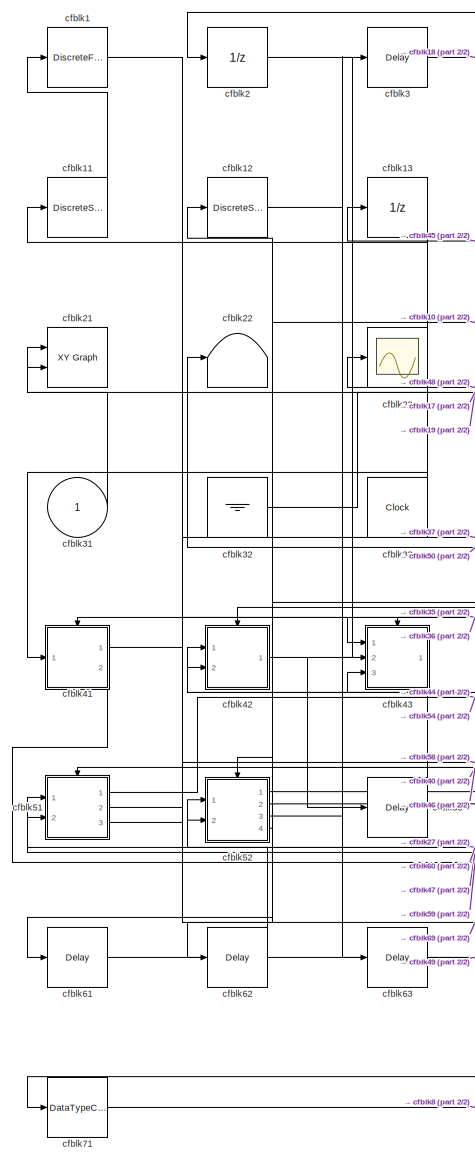
[diagram: root canvas - part 1/2, left side, full height]
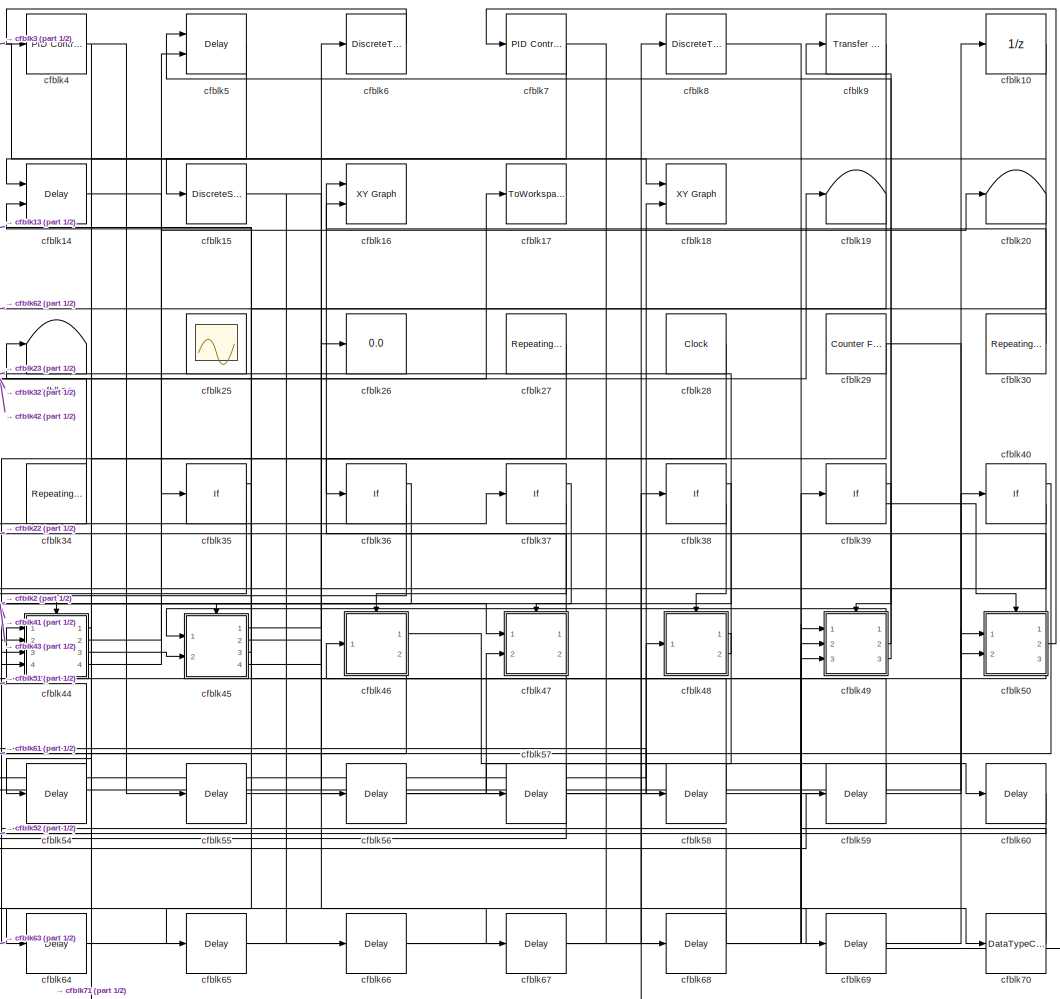
[diagram: root canvas - part 2/2, center side, full height]
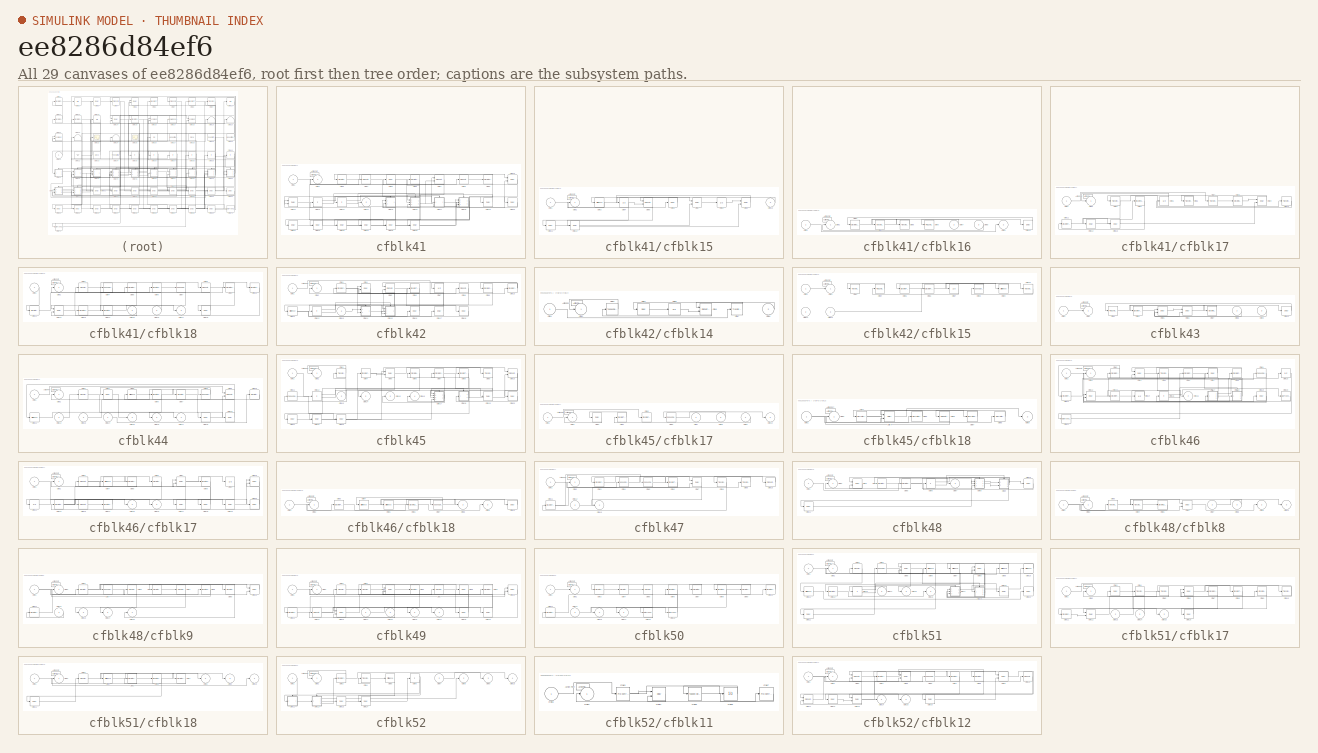
[diagram: thumbnail index - all 29 canvases of the model, root first then tree order]
MODEL slx_ee8286d84ef6
KIND model
CONFIG AbsTol = auto
CONFIG EnableMultiTasking = off
CONFIG FixedStep = auto
CONFIG MaxStep = auto
CONFIG MinStep = auto
CONFIG RelTol = 1e-3
CONFIG SampleTimeConstraint = Unconstrained
CONFIG Solver = VariableStepAuto
CONFIG SolverName = VariableStepAuto
CONFIG StartTime = 0.0
CONFIG StopTime = 10.0
BLOCK [DiscreteFilter] cfblk1
  InputPortMap = u0
  Ports = [1, 1]
  SampleTime = 1
BLOCK [UnitDelay] cfblk10
  InputProcessing = Elements as channels (sample based)
BLOCK [DiscreteStateSpace] cfblk11
BLOCK [DiscreteStateSpace] cfblk12
BLOCK [UnitDelay] cfblk13
  InputProcessing = Elements as channels (sample based)
BLOCK [Delay] cfblk14
  InputPortMap = u0,e6
  Ports = [2, 1]
  SampleTime = 1
  ShowEnablePort = on
BLOCK [DiscreteStateSpace] cfblk15
BLOCK [Reference] cfblk16  REF=simulink/Sinks/XY Graph
  Ports = [2]
  SourceBlock = simulink/Sinks/XY Graph
  SourceProductBaseCode = SL
  SourceProductName = Simulink
  SourceType = XY scope.
BLOCK [ToWorkspace] cfblk17
  FixptAsFi = on
  MaxDataPoints = inf
  Ports = [1]
  SampleTime = -1
  Save2DSignal = 3-D array (concatenate along third dimension)
  SaveFormat = Timeseries
  VariableName = ggrnzxh
BLOCK [Reference] cfblk18  REF=simulink/Sinks/XY Graph
  Ports = [2]
  SourceBlock = simulink/Sinks/XY Graph
  SourceProductBaseCode = SL
  SourceProductName = Simulink
  SourceType = XY scope.
BLOCK [Terminator] cfblk19
BLOCK [UnitDelay] cfblk2
  InputProcessing = Elements as channels (sample based)
BLOCK [Terminator] cfblk20
BLOCK [Reference] cfblk21  REF=simulink/Sinks/XY Graph
  Ports = [2]
  SourceBlock = simulink/Sinks/XY Graph
  SourceProductBaseCode = SL
  SourceProductName = Simulink
  SourceType = XY scope.
BLOCK [Terminator] cfblk22
BLOCK [Scope] cfblk23
  Floating = off
  NumInputPorts = 1
  Ports = [1]
  ScopeSpecificationString = Simulink.scopes.TimeScopeBlockCfg
BLOCK [Terminator] cfblk24
BLOCK [Scope] cfblk25
  Floating = on
  NumInputPorts = 1
  Ports = []
  ScopeSpecificationString = Simulink.scopes.TimeScopeBlockCfg
BLOCK [Display] cfblk26
  Decimation = 1
  Ports = [1]
BLOCK [Reference] cfblk27  REF=simulink/Sources/Repeating
Sequence
Stair
  Ports = [0, 1]
  SourceBlock = simulink/Sources/Repeating\nSequence\nStair
  SourceProductBaseCode = SL
  SourceProductName = Simulink
  SourceType = Repeating Sequence Stair
BLOCK [Clock] cfblk28
BLOCK [Reference] cfblk29  REF=simulink/Sources/Counter
Free-Running
  Ports = [0, 1]
  SourceBlock = simulink/Sources/Counter\nFree-Running
  SourceProductBaseCode = SL
  SourceProductName = Simulink
  SourceType = Counter Free-Running
BLOCK [Delay] cfblk3
  InputPortMap = u0
  Ports = [1, 1]
  SampleTime = 1
BLOCK [Reference] cfblk30  REF=simulink/Sources/Repeating
Sequence
Stair
  Ports = [0, 1]
  SourceBlock = simulink/Sources/Repeating\nSequence\nStair
  SourceProductBaseCode = SL
  SourceProductName = Simulink
  SourceType = Repeating Sequence Stair
BLOCK [Inport] cfblk31
  IconDisplay = Port number
BLOCK [Ground] cfblk32
BLOCK [Clock] cfblk33
BLOCK [Reference] cfblk34  REF=simulink/Sources/Repeating
Sequence
Stair
  Ports = [0, 1]
  SourceBlock = simulink/Sources/Repeating\nSequence\nStair
  SourceProductBaseCode = SL
  SourceProductName = Simulink
  SourceType = Repeating Sequence Stair
BLOCK [If] cfblk35
  Ports = [1, 2]
  SampleTime = 1
BLOCK [If] cfblk36
  Ports = [1, 2]
  SampleTime = 1
BLOCK [If] cfblk37
  Ports = [1, 2]
  SampleTime = 1
BLOCK [If] cfblk38
  Ports = [1, 2]
  SampleTime = 1
BLOCK [If] cfblk39
  Ports = [1, 2]
  SampleTime = 1
BLOCK [Reference] cfblk4  REF=simulink/Continuous/PID Controller
  Ports = [1, 1]
  SourceBlock = simulink/Continuous/PID Controller
  SourceProductBaseCode = SL
  SourceProductName = Simulink
  SourceType = PID 1dof
BLOCK [If] cfblk40
  Ports = [1, 2]
  SampleTime = 1
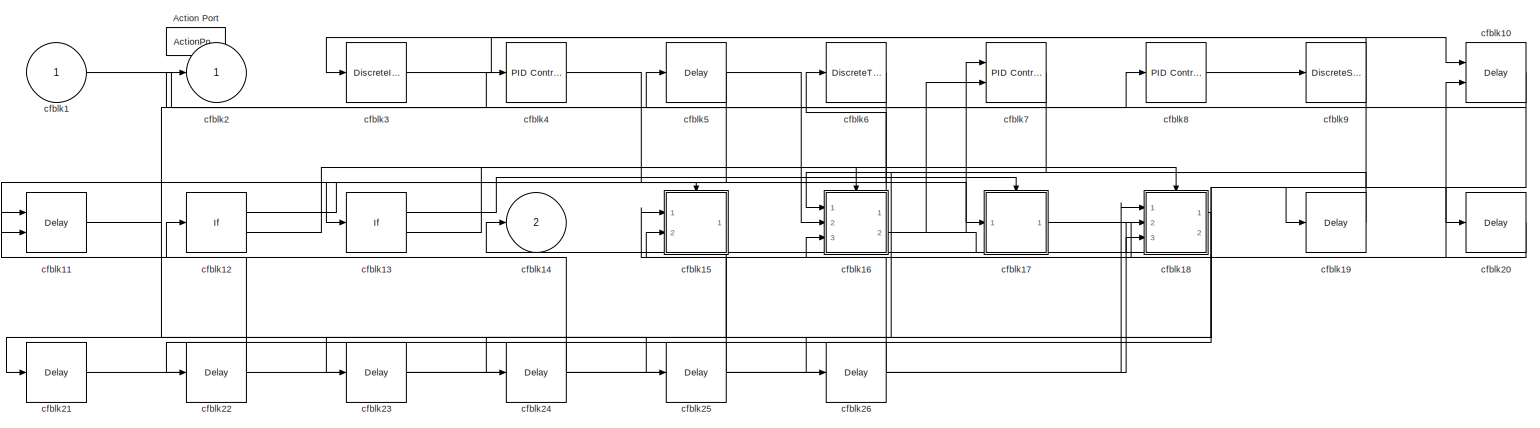
[diagram: cfblk41 - part 1/1, most of the canvas]
BLOCK [SubSystem] cfblk41
  Ports = [1, 2, 0, 0, 0, 0, 0, 1]
  RequestExecContextInheritance = off
  TreatAsAtomicUnit = on
BLOCK [ActionPort] cfblk41/Action Port
  ActionType = then
BLOCK [Inport] cfblk41/cfblk1
  IconDisplay = Port number
BLOCK [Delay] cfblk41/cfblk10
  DelayLengthSource = Input port
  InputPortMap = u0,p1
  Ports = [2, 1]
BLOCK [Delay] cfblk41/cfblk11
  InputPortMap = u0,e6
  Ports = [2, 1]
  ShowEnablePort = on
BLOCK [If] cfblk41/cfblk12
  Ports = [1, 2]
  SampleTime = 1
BLOCK [If] cfblk41/cfblk13
  Ports = [1, 2]
  SampleTime = 1
BLOCK [Outport] cfblk41/cfblk14
  IconDisplay = Port number
  Port = 2
BLOCK [SubSystem] cfblk41/cfblk15
  Ports = [2, 1, 0, 0, 0, 0, 0, 1]
  RequestExecContextInheritance = off
  TreatAsAtomicUnit = on
BLOCK [ActionPort] cfblk41/cfblk15/Action Port
  ActionType = then
BLOCK [Inport] cfblk41/cfblk15/cfblk1
  IconDisplay = Port number
BLOCK [Inport] cfblk41/cfblk15/cfblk10
  IconDisplay = Port number
  Port = 2
BLOCK [Delay] cfblk41/cfblk15/cfblk11
  InputPortMap = u0
  Ports = [1, 1]
BLOCK [Delay] cfblk41/cfblk15/cfblk12
  InputPortMap = u0
  Ports = [1, 1]
BLOCK [Outport] cfblk41/cfblk15/cfblk2
  IconDisplay = Port number
BLOCK [Reference] cfblk41/cfblk15/cfblk3  REF=simulink/Discrete/Difference
  Ports = [1, 1]
  SourceBlock = simulink/Discrete/Difference
  SourceProductBaseCode = SL
  SourceProductName = Simulink
  SourceType = Difference
BLOCK [UnitDelay] cfblk41/cfblk15/cfblk4
  InputProcessing = Elements as channels (sample based)
  SampleTime = -1
BLOCK [Reference] cfblk41/cfblk15/cfblk5  REF=simulink/Continuous/PID Controller (2DOF)
  Ports = [2, 1]
  SourceBlock = simulink/Continuous/PID Controller (2DOF)
  SourceProductBaseCode = SL
  SourceProductName = Simulink
  SourceType = PID 2dof
BLOCK [Delay] cfblk41/cfblk15/cfblk6
  InputPortMap = u0
  Ports = [1, 1]
BLOCK [Delay] cfblk41/cfblk15/cfblk7
  DelayLengthSource = Input port
  InputPortMap = u0,p1
  Ports = [2, 1]
BLOCK [UnitDelay] cfblk41/cfblk15/cfblk8
  InputProcessing = Elements as channels (sample based)
  SampleTime = -1
BLOCK [Delay] cfblk41/cfblk15/cfblk9
  DelayLengthSource = Input port
  InputPortMap = u0,p1
  Ports = [2, 1]
BLOCK [SubSystem] cfblk41/cfblk16
  Ports = [3, 2, 0, 0, 0, 0, 0, 1]
  RequestExecContextInheritance = off
  TreatAsAtomicUnit = on
BLOCK [ActionPort] cfblk41/cfblk16/Action Port
  ActionType = else
BLOCK [Inport] cfblk41/cfblk16/cfblk1
  IconDisplay = Port number
BLOCK [Delay] cfblk41/cfblk16/cfblk10
  InputPortMap = u0
  Ports = [1, 1]
BLOCK [Outport] cfblk41/cfblk16/cfblk2
  IconDisplay = Port number
BLOCK [DiscreteStateSpace] cfblk41/cfblk16/cfblk3
  SampleTime = -1
BLOCK [Reference] cfblk41/cfblk16/cfblk4  REF=simulink/Discrete/Transfer Fcn
Lead or Lag
  Ports = [1, 1]
  SourceBlock = simulink/Discrete/Transfer Fcn\nLead or Lag
  SourceProductBaseCode = SL
  SourceProductName = Simulink
  SourceType = Lead or Lag Compensator
BLOCK [Reference] cfblk41/cfblk16/cfblk5  REF=simulink/Discrete/Transfer Fcn
Lead or Lag
  Ports = [1, 1]
  SourceBlock = simulink/Discrete/Transfer Fcn\nLead or Lag
  SourceProductBaseCode = SL
  SourceProductName = Simulink
  SourceType = Lead or Lag Compensator
BLOCK [Reference] cfblk41/cfblk16/cfblk6  REF=simulink/Continuous/PID Controller
  Ports = [1, 1]
  SourceBlock = simulink/Continuous/PID Controller
  SourceProductBaseCode = SL
  SourceProductName = Simulink
  SourceType = PID 1dof
BLOCK [Inport] cfblk41/cfblk16/cfblk7
  IconDisplay = Port number
  Port = 2
BLOCK [Inport] cfblk41/cfblk16/cfblk8
  IconDisplay = Port number
  Port = 3
BLOCK [Outport] cfblk41/cfblk16/cfblk9
  IconDisplay = Port number
  Port = 2
BLOCK [SubSystem] cfblk41/cfblk17
  Ports = [1, 1, 0, 0, 0, 0, 0, 1]
  RequestExecContextInheritance = off
  TreatAsAtomicUnit = on
BLOCK [ActionPort] cfblk41/cfblk17/Action Port
  ActionType = then
BLOCK [Inport] cfblk41/cfblk17/cfblk1
  IconDisplay = Port number
BLOCK [Reference] cfblk41/cfblk17/cfblk10  REF=simulink/Discrete/Transfer Fcn
Real Zero
  Ports = [1, 1]
  SourceBlock = simulink/Discrete/Transfer Fcn\nReal Zero
  SourceProductBaseCode = SL
  SourceProductName = Simulink
  SourceType = Transfer Fcn Real Zero
BLOCK [DiscreteFir] cfblk41/cfblk17/cfblk11
  InputPortMap = u0
  OutputPortMap = o0
  Ports = [1, 1]
BLOCK [Delay] cfblk41/cfblk17/cfblk12
  InputPortMap = u0
  Ports = [1, 1]
BLOCK [Delay] cfblk41/cfblk17/cfblk13
  InputPortMap = u0
  Ports = [1, 1]
BLOCK [Outport] cfblk41/cfblk17/cfblk2
  IconDisplay = Port number
BLOCK [Reference] cfblk41/cfblk17/cfblk3  REF=simulink/Discrete/Transfer Fcn
Lead or Lag
  Ports = [1, 1]
  SourceBlock = simulink/Discrete/Transfer Fcn\nLead or Lag
  SourceProductBaseCode = SL
  SourceProductName = Simulink
  SourceType = Lead or Lag Compensator
BLOCK [DiscreteStateSpace] cfblk41/cfblk17/cfblk4
  SampleTime = -1
BLOCK [UnitDelay] cfblk41/cfblk17/cfblk5
  InputProcessing = Elements as channels (sample based)
  SampleTime = -1
BLOCK [Reference] cfblk41/cfblk17/cfblk6  REF=simulink/Discrete/Transfer Fcn
First Order
  Ports = [1, 1]
  SourceBlock = simulink/Discrete/Transfer Fcn\nFirst Order
  SourceProductBaseCode = SL
  SourceProductName = Simulink
  SourceType = First Order Transfer Fcn
BLOCK [Reference] cfblk41/cfblk17/cfblk7  REF=simulink/Discrete/Transfer Fcn
Lead or Lag
  Ports = [1, 1]
  SourceBlock = simulink/Discrete/Transfer Fcn\nLead or Lag
  SourceProductBaseCode = SL
  SourceProductName = Simulink
  SourceType = Lead or Lag Compensator
BLOCK [DiscreteIntegrator] cfblk41/cfblk17/cfblk8
  ICPrevOutput = DiscIntNeverNeededParam
  ICPrevScaledInput = DiscIntNeverNeededParam
  InitialConditionSetting = Auto
  Ports = [1, 1]
  SampleTime = -1
BLOCK [Delay] cfblk41/cfblk17/cfblk9
  DelayLengthSource = Input port
  InputPortMap = u0,p1
  Ports = [2, 1]
BLOCK [SubSystem] cfblk41/cfblk18
  Ports = [3, 2, 0, 0, 0, 0, 0, 1]
  RequestExecContextInheritance = off
  TreatAsAtomicUnit = on
BLOCK [ActionPort] cfblk41/cfblk18/Action Port
  ActionType = else
BLOCK [Inport] cfblk41/cfblk18/cfblk1
  IconDisplay = Port number
BLOCK [DiscreteStateSpace] cfblk41/cfblk18/cfblk10
  SampleTime = -1
BLOCK [DiscreteIntegrator] cfblk41/cfblk18/cfblk11
  ICPrevOutput = DiscIntNeverNeededParam
  ICPrevScaledInput = DiscIntNeverNeededParam
  InitialConditionSetting = Auto
  Ports = [1, 1]
  SampleTime = -1
BLOCK [Delay] cfblk41/cfblk18/cfblk12
  DelayLengthSource = Input port
  InputPortMap = u0,p1
  Ports = [2, 1]
BLOCK [DiscreteStateSpace] cfblk41/cfblk18/cfblk13
  SampleTime = -1
BLOCK [DiscreteZeroPole] cfblk41/cfblk18/cfblk14
  Gain = 1
  Poles = [0 0.5]
  SampleTime = -1
BLOCK [Inport] cfblk41/cfblk18/cfblk15
  IconDisplay = Port number
  Port = 2
BLOCK [Inport] cfblk41/cfblk18/cfblk16
  IconDisplay = Port number
  Port = 3
BLOCK [Outport] cfblk41/cfblk18/cfblk17
  IconDisplay = Port number
  Port = 2
BLOCK [Delay] cfblk41/cfblk18/cfblk18
  InputPortMap = u0
  Ports = [1, 1]
BLOCK [Outport] cfblk41/cfblk18/cfblk2
  IconDisplay = Port number
BLOCK [Reference] cfblk41/cfblk18/cfblk3  REF=simulink/Discrete/Transfer Fcn
Lead or Lag
  Ports = [1, 1]
  SourceBlock = simulink/Discrete/Transfer Fcn\nLead or Lag
  SourceProductBaseCode = SL
  SourceProductName = Simulink
  SourceType = Lead or Lag Compensator
BLOCK [Reference] cfblk41/cfblk18/cfblk4  REF=simulink/Discrete/Tapped Delay
  Ports = [1, 1]
  SourceBlock = simulink/Discrete/Tapped Delay
  SourceProductBaseCode = SL
  SourceProductName = Simulink
  SourceType = Tapped Delay Line
BLOCK [DiscreteStateSpace] cfblk41/cfblk18/cfblk5
  SampleTime = -1
BLOCK [DiscreteZeroPole] cfblk41/cfblk18/cfblk6
  Gain = 1
  Poles = [0 0.5]
  SampleTime = -1
BLOCK [Reference] cfblk41/cfblk18/cfblk7  REF=simulink/Discrete/Tapped Delay
  Ports = [1, 1]
  SourceBlock = simulink/Discrete/Tapped Delay
  SourceProductBaseCode = SL
  SourceProductName = Simulink
  SourceType = Tapped Delay Line
BLOCK [Reference] cfblk41/cfblk18/cfblk8  REF=simulink/Continuous/PID Controller
  Ports = [1, 1]
  SourceBlock = simulink/Continuous/PID Controller
  SourceProductBaseCode = SL
  SourceProductName = Simulink
  SourceType = PID 1dof
BLOCK [DiscreteStateSpace] cfblk41/cfblk18/cfblk9
  SampleTime = -1
BLOCK [Delay] cfblk41/cfblk19
  InputPortMap = u0
  Ports = [1, 1]
BLOCK [Outport] cfblk41/cfblk2
  IconDisplay = Port number
BLOCK [Delay] cfblk41/cfblk20
  InputPortMap = u0
  Ports = [1, 1]
BLOCK [Delay] cfblk41/cfblk21
  InputPortMap = u0
  Ports = [1, 1]
BLOCK [Delay] cfblk41/cfblk22
  InputPortMap = u0
  Ports = [1, 1]
BLOCK [Delay] cfblk41/cfblk23
  InputPortMap = u0
  Ports = [1, 1]
BLOCK [Delay] cfblk41/cfblk24
  InputPortMap = u0
  Ports = [1, 1]
BLOCK [Delay] cfblk41/cfblk25
  InputPortMap = u0
  Ports = [1, 1]
BLOCK [Delay] cfblk41/cfblk26
  InputPortMap = u0
  Ports = [1, 1]
BLOCK [DiscreteIntegrator] cfblk41/cfblk3
  ICPrevOutput = DiscIntNeverNeededParam
  ICPrevScaledInput = DiscIntNeverNeededParam
  InitialConditionSetting = Auto
  Ports = [1, 1]
  SampleTime = -1
BLOCK [Reference] cfblk41/cfblk4  REF=simulink/Continuous/PID Controller
  Ports = [1, 1]
  SourceBlock = simulink/Continuous/PID Controller
  SourceProductBaseCode = SL
  SourceProductName = Simulink
  SourceType = PID 1dof
BLOCK [Delay] cfblk41/cfblk5
  InputPortMap = u0
  Ports = [1, 1]
BLOCK [DiscreteTransferFcn] cfblk41/cfblk6
  InputPortMap = u0
  Ports = [1, 1]
BLOCK [Reference] cfblk41/cfblk7  REF=simulink/Continuous/PID Controller (2DOF)
  Ports = [2, 1]
  SourceBlock = simulink/Continuous/PID Controller (2DOF)
  SourceProductBaseCode = SL
  SourceProductName = Simulink
  SourceType = PID 2dof
BLOCK [Reference] cfblk41/cfblk8  REF=simulink/Continuous/PID Controller
  Ports = [1, 1]
  SourceBlock = simulink/Continuous/PID Controller
  SourceProductBaseCode = SL
  SourceProductName = Simulink
  SourceType = PID 1dof
BLOCK [DiscreteStateSpace] cfblk41/cfblk9
  SampleTime = -1
BLOCK [SubSystem] cfblk42
  Ports = [2, 1, 0, 0, 0, 0, 0, 1]
  RequestExecContextInheritance = off
  TreatAsAtomicUnit = on
BLOCK [ActionPort] cfblk42/Action Port
  ActionType = else
BLOCK [Inport] cfblk42/cfblk1
  IconDisplay = Port number
BLOCK [DiscreteFir] cfblk42/cfblk10
  InputPortMap = u0
  OutputPortMap = o0
  Ports = [1, 1]
BLOCK [Reference] cfblk42/cfblk11  REF=simulink/Discrete/Difference
  Ports = [1, 1]
  SourceBlock = simulink/Discrete/Difference
  SourceProductBaseCode = SL
  SourceProductName = Simulink
  SourceType = Difference
BLOCK [If] cfblk42/cfblk12
  Ports = [1, 2]
  SampleTime = 1
BLOCK [Inport] cfblk42/cfblk13
  IconDisplay = Port number
  Port = 2
BLOCK [SubSystem] cfblk42/cfblk14
  Ports = [2, 1, 0, 0, 0, 0, 0, 1]
  RequestExecContextInheritance = off
  TreatAsAtomicUnit = on
BLOCK [ActionPort] cfblk42/cfblk14/Action Port
  ActionType = then
BLOCK [Inport] cfblk42/cfblk14/cfblk1
  IconDisplay = Port number
BLOCK [Outport] cfblk42/cfblk14/cfblk2
  IconDisplay = Port number
BLOCK [Reference] cfblk42/cfblk14/cfblk3  REF=simulink/Discrete/Tapped Delay
  Ports = [1, 1]
  SourceBlock = simulink/Discrete/Tapped Delay
  SourceProductBaseCode = SL
  SourceProductName = Simulink
  SourceType = Tapped Delay Line
BLOCK [Delay] cfblk42/cfblk14/cfblk4
  InputPortMap = u0
  Ports = [1, 1]
BLOCK [UnitDelay] cfblk42/cfblk14/cfblk5
  InputProcessing = Elements as channels (sample based)
  SampleTime = -1
BLOCK [Reference] cfblk42/cfblk14/cfblk6  REF=simulink/Continuous/PID Controller (2DOF)
  Ports = [2, 1]
  SourceBlock = simulink/Continuous/PID Controller (2DOF)
  SourceProductBaseCode = SL
  SourceProductName = Simulink
  SourceType = PID 2dof
BLOCK [Reference] cfblk42/cfblk14/cfblk7  REF=simulink/Discrete/Transfer Fcn
Lead or Lag
  Ports = [1, 1]
  SourceBlock = simulink/Discrete/Transfer Fcn\nLead or Lag
  SourceProductBaseCode = SL
  SourceProductName = Simulink
  SourceType = Lead or Lag Compensator
BLOCK [Inport] cfblk42/cfblk14/cfblk8
  IconDisplay = Port number
  Port = 2
BLOCK [SubSystem] cfblk42/cfblk15
  Ports = [3, 1, 0, 0, 0, 0, 0, 1]
  RequestExecContextInheritance = off
  TreatAsAtomicUnit = on
BLOCK [ActionPort] cfblk42/cfblk15/Action Port
  ActionType = else
BLOCK [Inport] cfblk42/cfblk15/cfblk1
  IconDisplay = Port number
BLOCK [Reference] cfblk42/cfblk15/cfblk10  REF=simulink/Discrete/Transfer Fcn
First Order
  Ports = [1, 1]
  SourceBlock = simulink/Discrete/Transfer Fcn\nFirst Order
  SourceProductBaseCode = SL
  SourceProductName = Simulink
  SourceType = First Order Transfer Fcn
BLOCK [Inport] cfblk42/cfblk15/cfblk11
  IconDisplay = Port number
  Port = 2
BLOCK [Inport] cfblk42/cfblk15/cfblk12
  IconDisplay = Port number
  Port = 3
BLOCK [Outport] cfblk42/cfblk15/cfblk2
  IconDisplay = Port number
BLOCK [Reference] cfblk42/cfblk15/cfblk3  REF=simulink/Discrete/Transfer Fcn
First Order
  Ports = [1, 1]
  SourceBlock = simulink/Discrete/Transfer Fcn\nFirst Order
  SourceProductBaseCode = SL
  SourceProductName = Simulink
  SourceType = First Order Transfer Fcn
BLOCK [Reference] cfblk42/cfblk15/cfblk4  REF=simulink/Continuous/PID Controller
  Ports = [1, 1]
  SourceBlock = simulink/Continuous/PID Controller
  SourceProductBaseCode = SL
  SourceProductName = Simulink
  SourceType = PID 1dof
BLOCK [DiscreteFilter] cfblk42/cfblk15/cfblk5
  InputPortMap = u0
  Ports = [1, 1]
BLOCK [DiscreteFir] cfblk42/cfblk15/cfblk6
  InputPortMap = u0
  OutputPortMap = o0
  Ports = [1, 1]
BLOCK [UnitDelay] cfblk42/cfblk15/cfblk7
  InputProcessing = Elements as channels (sample based)
  SampleTime = -1
BLOCK [Reference] cfblk42/cfblk15/cfblk8  REF=simulink/Discrete/Tapped Delay
  Ports = [1, 1]
  SourceBlock = simulink/Discrete/Tapped Delay
  SourceProductBaseCode = SL
  SourceProductName = Simulink
  SourceType = Tapped Delay Line
BLOCK [Reference] cfblk42/cfblk15/cfblk9  REF=simulink/Discrete/Difference
  Ports = [1, 1]
  SourceBlock = simulink/Discrete/Difference
  SourceProductBaseCode = SL
  SourceProductName = Simulink
  SourceType = Difference
BLOCK [Delay] cfblk42/cfblk16
  InputPortMap = u0
  Ports = [1, 1]
BLOCK [Delay] cfblk42/cfblk17
  InputPortMap = u0
  Ports = [1, 1]
BLOCK [Delay] cfblk42/cfblk18
  InputPortMap = u0
  Ports = [1, 1]
BLOCK [Outport] cfblk42/cfblk2
  IconDisplay = Port number
BLOCK [DiscreteZeroPole] cfblk42/cfblk3
  Gain = 1
  Poles = [0 0.5]
  SampleTime = -1
BLOCK [Delay] cfblk42/cfblk4
  DelayLengthSource = Input port
  InputPortMap = u0,p1
  Ports = [2, 1]
BLOCK [Reference] cfblk42/cfblk5  REF=simulink/Continuous/PID Controller (2DOF)
  Ports = [2, 1]
  SourceBlock = simulink/Continuous/PID Controller (2DOF)
  SourceProductBaseCode = SL
  SourceProductName = Simulink
  SourceType = PID 2dof
BLOCK [DiscreteTransferFcn] cfblk42/cfblk6
  InputPortMap = u0
  Ports = [1, 1]
BLOCK [UnitDelay] cfblk42/cfblk7
  InputProcessing = Elements as channels (sample based)
  SampleTime = -1
BLOCK [Reference] cfblk42/cfblk8  REF=simulink/Continuous/PID Controller
  Ports = [1, 1]
  SourceBlock = simulink/Continuous/PID Controller
  SourceProductBaseCode = SL
  SourceProductName = Simulink
  SourceType = PID 1dof
BLOCK [DiscreteStateSpace] cfblk42/cfblk9
  SampleTime = -1
BLOCK [SubSystem] cfblk43
  Ports = [3, 1, 0, 0, 0, 0, 0, 1]
  RequestExecContextInheritance = off
  TreatAsAtomicUnit = on
BLOCK [ActionPort] cfblk43/Action Port
  ActionType = then
BLOCK [Inport] cfblk43/cfblk1
  IconDisplay = Port number
BLOCK [Delay] cfblk43/cfblk10
  InputPortMap = u0
  Ports = [1, 1]
BLOCK [Outport] cfblk43/cfblk2
  IconDisplay = Port number
BLOCK [Reference] cfblk43/cfblk3  REF=simulink/Continuous/PID Controller
  Ports = [1, 1]
  SourceBlock = simulink/Continuous/PID Controller
  SourceProductBaseCode = SL
  SourceProductName = Simulink
  SourceType = PID 1dof
BLOCK [DiscreteTransferFcn] cfblk43/cfblk4
  InputPortMap = u0
  Ports = [1, 1]
BLOCK [Delay] cfblk43/cfblk5
  InputPortMap = u0,e6
  Ports = [2, 1]
  ShowEnablePort = on
BLOCK [Delay] cfblk43/cfblk6
  InputPortMap = u0,e6
  Ports = [2, 1]
  ShowEnablePort = on
BLOCK [DiscreteIntegrator] cfblk43/cfblk7
  ICPrevOutput = DiscIntNeverNeededParam
  ICPrevScaledInput = DiscIntNeverNeededParam
  InitialConditionSetting = Auto
  Ports = [1, 1]
  SampleTime = -1
BLOCK [Inport] cfblk43/cfblk8
  IconDisplay = Port number
  Port = 2
BLOCK [Inport] cfblk43/cfblk9
  IconDisplay = Port number
  Port = 3
BLOCK [SubSystem] cfblk44
  Ports = [4, 4, 0, 0, 0, 0, 0, 1]
  RequestExecContextInheritance = off
  TreatAsAtomicUnit = on
BLOCK [ActionPort] cfblk44/Action Port
  ActionType = else
BLOCK [Inport] cfblk44/cfblk1
  IconDisplay = Port number
BLOCK [DiscreteIntegrator] cfblk44/cfblk10
  ICPrevOutput = DiscIntNeverNeededParam
  ICPrevScaledInput = DiscIntNeverNeededParam
  InitialConditionSetting = Auto
  Ports = [1, 1]
  SampleTime = -1
BLOCK [Reference] cfblk44/cfblk11  REF=simulink/Discrete/Difference
  Ports = [1, 1]
  SourceBlock = simulink/Discrete/Difference
  SourceProductBaseCode = SL
  SourceProductName = Simulink
  SourceType = Difference
BLOCK [Inport] cfblk44/cfblk12
  IconDisplay = Port number
  Port = 2
BLOCK [Inport] cfblk44/cfblk13
  IconDisplay = Port number
  Port = 3
BLOCK [Inport] cfblk44/cfblk14
  IconDisplay = Port number
  Port = 4
BLOCK [Outport] cfblk44/cfblk15
  IconDisplay = Port number
  Port = 2
BLOCK [Outport] cfblk44/cfblk16
  IconDisplay = Port number
  Port = 3
BLOCK [Outport] cfblk44/cfblk17
  IconDisplay = Port number
  Port = 4
BLOCK [Delay] cfblk44/cfblk18
  InputPortMap = u0
  Ports = [1, 1]
BLOCK [Delay] cfblk44/cfblk19
  InputPortMap = u0
  Ports = [1, 1]
BLOCK [Outport] cfblk44/cfblk2
  IconDisplay = Port number
BLOCK [Reference] cfblk44/cfblk3  REF=simulink/Discrete/Transfer Fcn
First Order
  Ports = [1, 1]
  SourceBlock = simulink/Discrete/Transfer Fcn\nFirst Order
  SourceProductBaseCode = SL
  SourceProductName = Simulink
  SourceType = First Order Transfer Fcn
BLOCK [Delay] cfblk44/cfblk4
  InputPortMap = u0
  Ports = [1, 1]
BLOCK [Reference] cfblk44/cfblk5  REF=simulink/Discrete/Difference
  Ports = [1, 1]
  SourceBlock = simulink/Discrete/Difference
  SourceProductBaseCode = SL
  SourceProductName = Simulink
  SourceType = Difference
BLOCK [DiscreteZeroPole] cfblk44/cfblk6
  Gain = 1
  Poles = [0 0.5]
  SampleTime = -1
BLOCK [DiscreteIntegrator] cfblk44/cfblk7
  ICPrevOutput = DiscIntNeverNeededParam
  ICPrevScaledInput = DiscIntNeverNeededParam
  InitialConditionSetting = Auto
  Ports = [1, 1]
  SampleTime = -1
BLOCK [Reference] cfblk44/cfblk8  REF=simulink/Discrete/Tapped Delay
  Ports = [1, 1]
  SourceBlock = simulink/Discrete/Tapped Delay
  SourceProductBaseCode = SL
  SourceProductName = Simulink
  SourceType = Tapped Delay Line
BLOCK [Reference] cfblk44/cfblk9  REF=simulink/Continuous/PID Controller (2DOF)
  Ports = [2, 1]
  SourceBlock = simulink/Continuous/PID Controller (2DOF)
  SourceProductBaseCode = SL
  SourceProductName = Simulink
  SourceType = PID 2dof
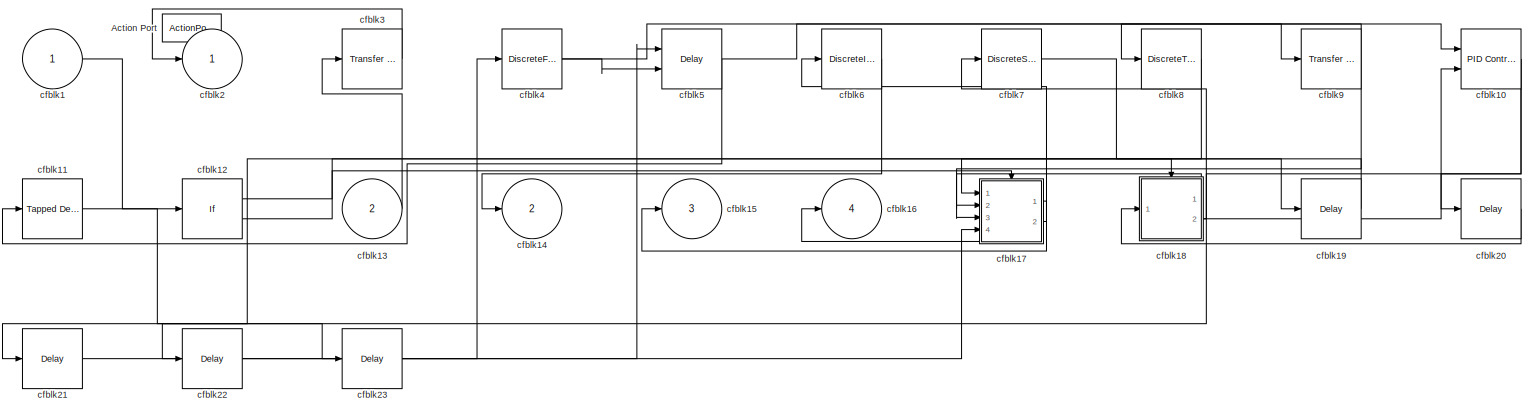
[diagram: cfblk45 - part 1/1, most of the canvas]
BLOCK [SubSystem] cfblk45
  Ports = [2, 4, 0, 0, 0, 0, 0, 1]
  RequestExecContextInheritance = off
  TreatAsAtomicUnit = on
BLOCK [ActionPort] cfblk45/Action Port
  ActionType = then
BLOCK [Inport] cfblk45/cfblk1
  IconDisplay = Port number
BLOCK [Reference] cfblk45/cfblk10  REF=simulink/Continuous/PID Controller (2DOF)
  Ports = [2, 1]
  SourceBlock = simulink/Continuous/PID Controller (2DOF)
  SourceProductBaseCode = SL
  SourceProductName = Simulink
  SourceType = PID 2dof
BLOCK [Reference] cfblk45/cfblk11  REF=simulink/Discrete/Tapped Delay
  Ports = [1, 1]
  SourceBlock = simulink/Discrete/Tapped Delay
  SourceProductBaseCode = SL
  SourceProductName = Simulink
  SourceType = Tapped Delay Line
BLOCK [If] cfblk45/cfblk12
  Ports = [1, 2]
  SampleTime = 1
BLOCK [Inport] cfblk45/cfblk13
  IconDisplay = Port number
  Port = 2
BLOCK [Outport] cfblk45/cfblk14
  IconDisplay = Port number
  Port = 2
BLOCK [Outport] cfblk45/cfblk15
  IconDisplay = Port number
  Port = 3
BLOCK [Outport] cfblk45/cfblk16
  IconDisplay = Port number
  Port = 4
BLOCK [SubSystem] cfblk45/cfblk17
  Ports = [4, 2, 0, 0, 0, 0, 0, 1]
  RequestExecContextInheritance = off
  TreatAsAtomicUnit = on
BLOCK [ActionPort] cfblk45/cfblk17/Action Port
  ActionType = then
BLOCK [Inport] cfblk45/cfblk17/cfblk1
  IconDisplay = Port number
BLOCK [Outport] cfblk45/cfblk17/cfblk10
  IconDisplay = Port number
  Port = 2
BLOCK [Outport] cfblk45/cfblk17/cfblk2
  IconDisplay = Port number
BLOCK [Delay] cfblk45/cfblk17/cfblk3
  InputPortMap = u0
  Ports = [1, 1]
BLOCK [DiscreteTransferFcn] cfblk45/cfblk17/cfblk4
  InputPortMap = u0
  Ports = [1, 1]
BLOCK [DiscreteFilter] cfblk45/cfblk17/cfblk5
  InputPortMap = u0
  Ports = [1, 1]
BLOCK [Reference] cfblk45/cfblk17/cfblk6  REF=simulink/Discrete/Tapped Delay
  Ports = [1, 1]
  SourceBlock = simulink/Discrete/Tapped Delay
  SourceProductBaseCode = SL
  SourceProductName = Simulink
  SourceType = Tapped Delay Line
BLOCK [Inport] cfblk45/cfblk17/cfblk7
  IconDisplay = Port number
  Port = 2
BLOCK [Inport] cfblk45/cfblk17/cfblk8
  IconDisplay = Port number
  Port = 3
BLOCK [Inport] cfblk45/cfblk17/cfblk9
  IconDisplay = Port number
  Port = 4
BLOCK [SubSystem] cfblk45/cfblk18
  Ports = [1, 2, 0, 0, 0, 0, 0, 1]
  RequestExecContextInheritance = off
  TreatAsAtomicUnit = on
BLOCK [ActionPort] cfblk45/cfblk18/Action Port
  ActionType = else
BLOCK [Inport] cfblk45/cfblk18/cfblk1
  IconDisplay = Port number
BLOCK [Outport] cfblk45/cfblk18/cfblk2
  IconDisplay = Port number
BLOCK [DiscreteTransferFcn] cfblk45/cfblk18/cfblk3
  InputPortMap = u0
  Ports = [1, 1]
BLOCK [Delay] cfblk45/cfblk18/cfblk4
  DelayLengthSource = Input port
  InputPortMap = u0,p1
  Ports = [2, 1]
BLOCK [DiscreteFilter] cfblk45/cfblk18/cfblk5
  InputPortMap = u0
  Ports = [1, 1]
BLOCK [Reference] cfblk45/cfblk18/cfblk6  REF=simulink/Continuous/PID Controller
  Ports = [1, 1]
  SourceBlock = simulink/Continuous/PID Controller
  SourceProductBaseCode = SL
  SourceProductName = Simulink
  SourceType = PID 1dof
BLOCK [DiscreteStateSpace] cfblk45/cfblk18/cfblk7
  SampleTime = -1
BLOCK [DiscreteIntegrator] cfblk45/cfblk18/cfblk8
  ICPrevOutput = DiscIntNeverNeededParam
  ICPrevScaledInput = DiscIntNeverNeededParam
  InitialConditionSetting = Auto
  Ports = [1, 1]
  SampleTime = -1
BLOCK [Outport] cfblk45/cfblk18/cfblk9
  IconDisplay = Port number
  Port = 2
BLOCK [Delay] cfblk45/cfblk19
  InputPortMap = u0
  Ports = [1, 1]
BLOCK [Outport] cfblk45/cfblk2
  IconDisplay = Port number
BLOCK [Delay] cfblk45/cfblk20
  InputPortMap = u0
  Ports = [1, 1]
BLOCK [Delay] cfblk45/cfblk21
  InputPortMap = u0
  Ports = [1, 1]
BLOCK [Delay] cfblk45/cfblk22
  InputPortMap = u0
  Ports = [1, 1]
BLOCK [Delay] cfblk45/cfblk23
  InputPortMap = u0
  Ports = [1, 1]
BLOCK [Reference] cfblk45/cfblk3  REF=simulink/Discrete/Transfer Fcn
First Order
  Ports = [1, 1]
  SourceBlock = simulink/Discrete/Transfer Fcn\nFirst Order
  SourceProductBaseCode = SL
  SourceProductName = Simulink
  SourceType = First Order Transfer Fcn
BLOCK [DiscreteFilter] cfblk45/cfblk4
  InputPortMap = u0
  Ports = [1, 1]
BLOCK [Delay] cfblk45/cfblk5
  DelayLengthSource = Input port
  InputPortMap = u0,p1
  Ports = [2, 1]
BLOCK [DiscreteIntegrator] cfblk45/cfblk6
  ICPrevOutput = DiscIntNeverNeededParam
  ICPrevScaledInput = DiscIntNeverNeededParam
  InitialConditionSetting = Auto
  Ports = [1, 1]
  SampleTime = -1
BLOCK [DiscreteStateSpace] cfblk45/cfblk7
  SampleTime = -1
BLOCK [DiscreteTransferFcn] cfblk45/cfblk8
  InputPortMap = u0
  Ports = [1, 1]
BLOCK [Reference] cfblk45/cfblk9  REF=simulink/Discrete/Transfer Fcn
First Order
  Ports = [1, 1]
  SourceBlock = simulink/Discrete/Transfer Fcn\nFirst Order
  SourceProductBaseCode = SL
  SourceProductName = Simulink
  SourceType = First Order Transfer Fcn
BLOCK [SubSystem] cfblk46
  Ports = [1, 2, 0, 0, 0, 0, 0, 1]
  RequestExecContextInheritance = off
  TreatAsAtomicUnit = on
BLOCK [ActionPort] cfblk46/Action Port
  ActionType = else
BLOCK [Inport] cfblk46/cfblk1
  IconDisplay = Port number
BLOCK [UnitDelay] cfblk46/cfblk10
  InputProcessing = Elements as channels (sample based)
  SampleTime = -1
BLOCK [DiscreteFir] cfblk46/cfblk11
  InputPortMap = u0
  OutputPortMap = o0
  Ports = [1, 1]
BLOCK [Delay] cfblk46/cfblk12
  DelayLengthSource = Input port
  InputPortMap = u0,p1
  Ports = [2, 1]
BLOCK [DiscreteFilter] cfblk46/cfblk13
  InputPortMap = u0
  Ports = [1, 1]
BLOCK [UnitDelay] cfblk46/cfblk14
  InputProcessing = Elements as channels (sample based)
  SampleTime = -1
BLOCK [If] cfblk46/cfblk15
  Ports = [1, 2]
  SampleTime = 1
BLOCK [Outport] cfblk46/cfblk16
  IconDisplay = Port number
  Port = 2
BLOCK [SubSystem] cfblk46/cfblk17
  Ports = [1, 3, 0, 0, 0, 0, 0, 1]
  RequestExecContextInheritance = off
  TreatAsAtomicUnit = on
BLOCK [ActionPort] cfblk46/cfblk17/Action Port
  ActionType = then
BLOCK [Inport] cfblk46/cfblk17/cfblk1
  IconDisplay = Port number
BLOCK [Delay] cfblk46/cfblk17/cfblk10
  InputPortMap = u0,e6
  Ports = [2, 1]
  ShowEnablePort = on
BLOCK [UnitDelay] cfblk46/cfblk17/cfblk11
  InputProcessing = Elements as channels (sample based)
  SampleTime = -1
BLOCK [DiscreteFir] cfblk46/cfblk17/cfblk12
  InputPortMap = u0
  OutputPortMap = o0
  Ports = [1, 1]
BLOCK [Reference] cfblk46/cfblk17/cfblk13  REF=simulink/Continuous/PID Controller
  Ports = [1, 1]
  SourceBlock = simulink/Continuous/PID Controller
  SourceProductBaseCode = SL
  SourceProductName = Simulink
  SourceType = PID 1dof
BLOCK [DiscreteFilter] cfblk46/cfblk17/cfblk14
  InputPortMap = u0
  Ports = [1, 1]
BLOCK [Outport] cfblk46/cfblk17/cfblk15
  IconDisplay = Port number
  Port = 2
BLOCK [Outport] cfblk46/cfblk17/cfblk16
  IconDisplay = Port number
  Port = 3
BLOCK [Delay] cfblk46/cfblk17/cfblk17
  InputPortMap = u0
  Ports = [1, 1]
BLOCK [Delay] cfblk46/cfblk17/cfblk18
  InputPortMap = u0
  Ports = [1, 1]
BLOCK [Delay] cfblk46/cfblk17/cfblk19
  InputPortMap = u0
  Ports = [1, 1]
BLOCK [Outport] cfblk46/cfblk17/cfblk2
  IconDisplay = Port number
BLOCK [Delay] cfblk46/cfblk17/cfblk20
  InputPortMap = u0
  Ports = [1, 1]
BLOCK [Reference] cfblk46/cfblk17/cfblk3  REF=simulink/Continuous/PID Controller
  Ports = [1, 1]
  SourceBlock = simulink/Continuous/PID Controller
  SourceProductBaseCode = SL
  SourceProductName = Simulink
  SourceType = PID 1dof
BLOCK [Reference] cfblk46/cfblk17/cfblk4  REF=simulink/Discrete/Difference
  Ports = [1, 1]
  SourceBlock = simulink/Discrete/Difference
  SourceProductBaseCode = SL
  SourceProductName = Simulink
  SourceType = Difference
BLOCK [DiscreteTransferFcn] cfblk46/cfblk17/cfblk5
  InputPortMap = u0
  Ports = [1, 1]
BLOCK [DiscreteIntegrator] cfblk46/cfblk17/cfblk6
  ICPrevOutput = DiscIntNeverNeededParam
  ICPrevScaledInput = DiscIntNeverNeededParam
  InitialConditionSetting = Auto
  Ports = [1, 1]
  SampleTime = -1
BLOCK [Delay] cfblk46/cfblk17/cfblk7
  InputPortMap = u0,e6
  Ports = [2, 1]
  ShowEnablePort = on
BLOCK [DiscreteZeroPole] cfblk46/cfblk17/cfblk8
  Gain = 1
  Poles = [0 0.5]
  SampleTime = -1
BLOCK [UnitDelay] cfblk46/cfblk17/cfblk9
  InputProcessing = Elements as channels (sample based)
  SampleTime = -1
BLOCK [SubSystem] cfblk46/cfblk18
  Ports = [1, 3, 0, 0, 0, 0, 0, 1]
  RequestExecContextInheritance = off
  TreatAsAtomicUnit = on
BLOCK [ActionPort] cfblk46/cfblk18/Action Port
  ActionType = else
BLOCK [Inport] cfblk46/cfblk18/cfblk1
  IconDisplay = Port number
BLOCK [Delay] cfblk46/cfblk18/cfblk10
  InputPortMap = u0
  Ports = [1, 1]
BLOCK [Outport] cfblk46/cfblk18/cfblk2
  IconDisplay = Port number
BLOCK [DiscreteFir] cfblk46/cfblk18/cfblk3
  InputPortMap = u0
  OutputPortMap = o0
  Ports = [1, 1]
BLOCK [Reference] cfblk46/cfblk18/cfblk4  REF=simulink/Discrete/Difference
  Ports = [1, 1]
  SourceBlock = simulink/Discrete/Difference
  SourceProductBaseCode = SL
  SourceProductName = Simulink
  SourceType = Difference
BLOCK [Reference] cfblk46/cfblk18/cfblk5  REF=simulink/Discrete/Difference
  Ports = [1, 1]
  SourceBlock = simulink/Discrete/Difference
  SourceProductBaseCode = SL
  SourceProductName = Simulink
  SourceType = Difference
BLOCK [DiscreteZeroPole] cfblk46/cfblk18/cfblk6
  Gain = 1
  Poles = [0 0.5]
  SampleTime = -1
BLOCK [Reference] cfblk46/cfblk18/cfblk7  REF=simulink/Discrete/Tapped Delay
  Ports = [1, 1]
  SourceBlock = simulink/Discrete/Tapped Delay
  SourceProductBaseCode = SL
  SourceProductName = Simulink
  SourceType = Tapped Delay Line
BLOCK [Outport] cfblk46/cfblk18/cfblk8
  IconDisplay = Port number
  Port = 2
BLOCK [Outport] cfblk46/cfblk18/cfblk9
  IconDisplay = Port number
  Port = 3
BLOCK [Delay] cfblk46/cfblk19
  InputPortMap = u0
  Ports = [1, 1]
BLOCK [Outport] cfblk46/cfblk2
  IconDisplay = Port number
BLOCK [DataTypeConversion] cfblk46/cfblk20
  RndMeth = Floor
  SaturateOnIntegerOverflow = off
BLOCK [DataTypeConversion] cfblk46/cfblk21
  RndMeth = Floor
  SaturateOnIntegerOverflow = off
BLOCK [DiscreteFir] cfblk46/cfblk3
  InputPortMap = u0
  OutputPortMap = o0
  Ports = [1, 1]
BLOCK [Delay] cfblk46/cfblk4
  InputPortMap = u0,e6
  Ports = [2, 1]
  ShowEnablePort = on
BLOCK [Reference] cfblk46/cfblk5  REF=simulink/Discrete/Transfer Fcn
Lead or Lag
  Ports = [1, 1]
  SourceBlock = simulink/Discrete/Transfer Fcn\nLead or Lag
  SourceProductBaseCode = SL
  SourceProductName = Simulink
  SourceType = Lead or Lag Compensator
BLOCK [DiscreteFilter] cfblk46/cfblk6
  InputPortMap = u0
  Ports = [1, 1]
BLOCK [Delay] cfblk46/cfblk7
  InputPortMap = u0
  Ports = [1, 1]
BLOCK [DiscreteFir] cfblk46/cfblk8
  InputPortMap = u0
  OutputPortMap = o0
  Ports = [1, 1]
BLOCK [Reference] cfblk46/cfblk9  REF=simulink/Discrete/Tapped Delay
  Ports = [1, 1]
  SourceBlock = simulink/Discrete/Tapped Delay
  SourceProductBaseCode = SL
  SourceProductName = Simulink
  SourceType = Tapped Delay Line
BLOCK [SubSystem] cfblk47
  Ports = [2, 2, 0, 0, 0, 0, 0, 1]
  RequestExecContextInheritance = off
  TreatAsAtomicUnit = on
BLOCK [ActionPort] cfblk47/Action Port
  ActionType = then
BLOCK [Inport] cfblk47/cfblk1
  IconDisplay = Port number
BLOCK [Reference] cfblk47/cfblk10  REF=simulink/Continuous/PID Controller
  Ports = [1, 1]
  SourceBlock = simulink/Continuous/PID Controller
  SourceProductBaseCode = SL
  SourceProductName = Simulink
  SourceType = PID 1dof
BLOCK [DiscreteFilter] cfblk47/cfblk11
  InputPortMap = u0
  Ports = [1, 1]
BLOCK [Inport] cfblk47/cfblk12
  IconDisplay = Port number
  Port = 2
BLOCK [Outport] cfblk47/cfblk13
  IconDisplay = Port number
  Port = 2
BLOCK [Outport] cfblk47/cfblk2
  IconDisplay = Port number
BLOCK [DiscreteZeroPole] cfblk47/cfblk3
  Gain = 1
  Poles = [0 0.5]
  SampleTime = -1
BLOCK [Reference] cfblk47/cfblk4  REF=simulink/Discrete/Tapped Delay
  Ports = [1, 1]
  SourceBlock = simulink/Discrete/Tapped Delay
  SourceProductBaseCode = SL
  SourceProductName = Simulink
  SourceType = Tapped Delay Line
BLOCK [Reference] cfblk47/cfblk5  REF=simulink/Discrete/Tapped Delay
  Ports = [1, 1]
  SourceBlock = simulink/Discrete/Tapped Delay
  SourceProductBaseCode = SL
  SourceProductName = Simulink
  SourceType = Tapped Delay Line
BLOCK [DiscreteTransferFcn] cfblk47/cfblk6
  InputPortMap = u0
  Ports = [1, 1]
BLOCK [Delay] cfblk47/cfblk7
  DelayLengthSource = Input port
  InputPortMap = u0,p1
  Ports = [2, 1]
BLOCK [Reference] cfblk47/cfblk8  REF=simulink/Discrete/Transfer Fcn
First Order
  Ports = [1, 1]
  SourceBlock = simulink/Discrete/Transfer Fcn\nFirst Order
  SourceProductBaseCode = SL
  SourceProductName = Simulink
  SourceType = First Order Transfer Fcn
BLOCK [Reference] cfblk47/cfblk9  REF=simulink/Discrete/Transfer Fcn
First Order
  Ports = [1, 1]
  SourceBlock = simulink/Discrete/Transfer Fcn\nFirst Order
  SourceProductBaseCode = SL
  SourceProductName = Simulink
  SourceType = First Order Transfer Fcn
BLOCK [SubSystem] cfblk48
  Ports = [1, 2, 0, 0, 0, 0, 0, 1]
  RequestExecContextInheritance = off
  TreatAsAtomicUnit = on
BLOCK [ActionPort] cfblk48/Action Port
  ActionType = else
BLOCK [Inport] cfblk48/cfblk1
  IconDisplay = Port number
BLOCK [Delay] cfblk48/cfblk10
  InputPortMap = u0
  Ports = [1, 1]
BLOCK [Delay] cfblk48/cfblk11
  InputPortMap = u0
  Ports = [1, 1]
BLOCK [Outport] cfblk48/cfblk2
  IconDisplay = Port number
BLOCK [Delay] cfblk48/cfblk3
  InputPortMap = u0,e6
  Ports = [2, 1]
  ShowEnablePort = on
BLOCK [DiscreteTransferFcn] cfblk48/cfblk4
  InputPortMap = u0
  Ports = [1, 1]
BLOCK [DiscreteFir] cfblk48/cfblk5
  InputPortMap = u0
  OutputPortMap = o0
  Ports = [1, 1]
BLOCK [If] cfblk48/cfblk6
  Ports = [1, 2]
  SampleTime = 1
BLOCK [Outport] cfblk48/cfblk7
  IconDisplay = Port number
  Port = 2
BLOCK [SubSystem] cfblk48/cfblk8
  Ports = [3, 3, 0, 0, 0, 0, 0, 1]
  RequestExecContextInheritance = off
  TreatAsAtomicUnit = on
BLOCK [ActionPort] cfblk48/cfblk8/Action Port
  ActionType = then
BLOCK [Inport] cfblk48/cfblk8/cfblk1
  IconDisplay = Port number
BLOCK [Outport] cfblk48/cfblk8/cfblk10
  IconDisplay = Port number
  Port = 3
BLOCK [Outport] cfblk48/cfblk8/cfblk2
  IconDisplay = Port number
BLOCK [Reference] cfblk48/cfblk8/cfblk3  REF=simulink/Discrete/Transfer Fcn
Real Zero
  Ports = [1, 1]
  SourceBlock = simulink/Discrete/Transfer Fcn\nReal Zero
  SourceProductBaseCode = SL
  SourceProductName = Simulink
  SourceType = Transfer Fcn Real Zero
BLOCK [Reference] cfblk48/cfblk8/cfblk4  REF=simulink/Discrete/Transfer Fcn
Real Zero
  Ports = [1, 1]
  SourceBlock = simulink/Discrete/Transfer Fcn\nReal Zero
  SourceProductBaseCode = SL
  SourceProductName = Simulink
  SourceType = Transfer Fcn Real Zero
BLOCK [DiscreteZeroPole] cfblk48/cfblk8/cfblk5
  Gain = 1
  Poles = [0 0.5]
  SampleTime = -1
BLOCK [Delay] cfblk48/cfblk8/cfblk6
  InputPortMap = u0,e6
  Ports = [2, 1]
  ShowEnablePort = on
BLOCK [Inport] cfblk48/cfblk8/cfblk7
  IconDisplay = Port number
  Port = 2
BLOCK [Inport] cfblk48/cfblk8/cfblk8
  IconDisplay = Port number
  Port = 3
BLOCK [Outport] cfblk48/cfblk8/cfblk9
  IconDisplay = Port number
  Port = 2
BLOCK [SubSystem] cfblk48/cfblk9
  Ports = [2, 4, 0, 0, 0, 0, 0, 1]
  RequestExecContextInheritance = off
  TreatAsAtomicUnit = on
BLOCK [ActionPort] cfblk48/cfblk9/Action Port
  ActionType = else
BLOCK [Inport] cfblk48/cfblk9/cfblk1
  IconDisplay = Port number
BLOCK [Delay] cfblk48/cfblk9/cfblk10
  InputPortMap = u0,e6
  Ports = [2, 1]
  ShowEnablePort = on
BLOCK [DiscreteFir] cfblk48/cfblk9/cfblk11
  InputPortMap = u0
  OutputPortMap = o0
  Ports = [1, 1]
BLOCK [Inport] cfblk48/cfblk9/cfblk12
  IconDisplay = Port number
  Port = 2
BLOCK [Outport] cfblk48/cfblk9/cfblk13
  IconDisplay = Port number
  Port = 2
BLOCK [Outport] cfblk48/cfblk9/cfblk14
  IconDisplay = Port number
  Port = 3
BLOCK [Outport] cfblk48/cfblk9/cfblk15
  IconDisplay = Port number
  Port = 4
BLOCK [Outport] cfblk48/cfblk9/cfblk2
  IconDisplay = Port number
BLOCK [DiscreteIntegrator] cfblk48/cfblk9/cfblk3
  ICPrevOutput = DiscIntNeverNeededParam
  ICPrevScaledInput = DiscIntNeverNeededParam
  InitialConditionSetting = Auto
  Ports = [1, 1]
  SampleTime = -1
BLOCK [Reference] cfblk48/cfblk9/cfblk4  REF=simulink/Discrete/Tapped Delay
  Ports = [1, 1]
  SourceBlock = simulink/Discrete/Tapped Delay
  SourceProductBaseCode = SL
  SourceProductName = Simulink
  SourceType = Tapped Delay Line
BLOCK [Reference] cfblk48/cfblk9/cfblk5  REF=simulink/Discrete/Transfer Fcn
Real Zero
  Ports = [1, 1]
  SourceBlock = simulink/Discrete/Transfer Fcn\nReal Zero
  SourceProductBaseCode = SL
  SourceProductName = Simulink
  SourceType = Transfer Fcn Real Zero
BLOCK [DiscreteIntegrator] cfblk48/cfblk9/cfblk6
  ICPrevOutput = DiscIntNeverNeededParam
  ICPrevScaledInput = DiscIntNeverNeededParam
  InitialConditionSetting = Auto
  Ports = [1, 1]
  SampleTime = -1
BLOCK [Reference] cfblk48/cfblk9/cfblk7  REF=simulink/Discrete/Transfer Fcn
First Order
  Ports = [1, 1]
  SourceBlock = simulink/Discrete/Transfer Fcn\nFirst Order
  SourceProductBaseCode = SL
  SourceProductName = Simulink
  SourceType = First Order Transfer Fcn
BLOCK [DiscreteStateSpace] cfblk48/cfblk9/cfblk8
  SampleTime = -1
BLOCK [DiscreteIntegrator] cfblk48/cfblk9/cfblk9
  ICPrevOutput = DiscIntNeverNeededParam
  ICPrevScaledInput = DiscIntNeverNeededParam
  InitialConditionSetting = Auto
  Ports = [1, 1]
  SampleTime = -1
BLOCK [SubSystem] cfblk49
  Ports = [3, 3, 0, 0, 0, 0, 0, 1]
  RequestExecContextInheritance = off
  TreatAsAtomicUnit = on
BLOCK [ActionPort] cfblk49/Action Port
  ActionType = then
BLOCK [Inport] cfblk49/cfblk1
  IconDisplay = Port number
BLOCK [Delay] cfblk49/cfblk10
  InputPortMap = u0,e6
  Ports = [2, 1]
  ShowEnablePort = on
BLOCK [DiscreteStateSpace] cfblk49/cfblk11
  SampleTime = -1
BLOCK [Reference] cfblk49/cfblk12  REF=simulink/Continuous/PID Controller
  Ports = [1, 1]
  SourceBlock = simulink/Continuous/PID Controller
  SourceProductBaseCode = SL
  SourceProductName = Simulink
  SourceType = PID 1dof
BLOCK [Delay] cfblk49/cfblk13
  InputPortMap = u0,e6
  Ports = [2, 1]
  ShowEnablePort = on
BLOCK [Inport] cfblk49/cfblk14
  IconDisplay = Port number
  Port = 2
BLOCK [Inport] cfblk49/cfblk15
  IconDisplay = Port number
  Port = 3
BLOCK [Outport] cfblk49/cfblk16
  IconDisplay = Port number
  Port = 2
BLOCK [Outport] cfblk49/cfblk17
  IconDisplay = Port number
  Port = 3
BLOCK [Delay] cfblk49/cfblk18
  InputPortMap = u0
  Ports = [1, 1]
BLOCK [Delay] cfblk49/cfblk19
  InputPortMap = u0
  Ports = [1, 1]
BLOCK [Outport] cfblk49/cfblk2
  IconDisplay = Port number
BLOCK [Reference] cfblk49/cfblk3  REF=simulink/Discrete/Transfer Fcn
Lead or Lag
  Ports = [1, 1]
  SourceBlock = simulink/Discrete/Transfer Fcn\nLead or Lag
  SourceProductBaseCode = SL
  SourceProductName = Simulink
  SourceType = Lead or Lag Compensator
BLOCK [Reference] cfblk49/cfblk4  REF=simulink/Discrete/Transfer Fcn
Real Zero
  Ports = [1, 1]
  SourceBlock = simulink/Discrete/Transfer Fcn\nReal Zero
  SourceProductBaseCode = SL
  SourceProductName = Simulink
  SourceType = Transfer Fcn Real Zero
BLOCK [Delay] cfblk49/cfblk5
  InputPortMap = u0,e6
  Ports = [2, 1]
  ShowEnablePort = on
BLOCK [DiscreteFir] cfblk49/cfblk6
  InputPortMap = u0
  OutputPortMap = o0
  Ports = [1, 1]
BLOCK [Reference] cfblk49/cfblk7  REF=simulink/Discrete/Transfer Fcn
Lead or Lag
  Ports = [1, 1]
  SourceBlock = simulink/Discrete/Transfer Fcn\nLead or Lag
  SourceProductBaseCode = SL
  SourceProductName = Simulink
  SourceType = Lead or Lag Compensator
BLOCK [Delay] cfblk49/cfblk8
  InputPortMap = u0
  Ports = [1, 1]
BLOCK [DiscreteZeroPole] cfblk49/cfblk9
  Gain = 1
  Poles = [0 0.5]
  SampleTime = -1
BLOCK [Delay] cfblk5
  DelayLengthSource = Input port
  InputPortMap = u0,p1
  Ports = [2, 1]
  SampleTime = 1
BLOCK [SubSystem] cfblk50
  Ports = [2, 3, 0, 0, 0, 0, 0, 1]
  RequestExecContextInheritance = off
  TreatAsAtomicUnit = on
BLOCK [ActionPort] cfblk50/Action Port
  ActionType = else
BLOCK [Inport] cfblk50/cfblk1
  IconDisplay = Port number
BLOCK [DiscreteZeroPole] cfblk50/cfblk10
  Gain = 1
  Poles = [0 0.5]
  SampleTime = -1
BLOCK [DiscreteFilter] cfblk50/cfblk11
  InputPortMap = u0
  Ports = [1, 1]
BLOCK [Inport] cfblk50/cfblk12
  IconDisplay = Port number
  Port = 2
BLOCK [Outport] cfblk50/cfblk13
  IconDisplay = Port number
  Port = 2
BLOCK [Outport] cfblk50/cfblk14
  IconDisplay = Port number
  Port = 3
BLOCK [DataTypeConversion] cfblk50/cfblk15
  RndMeth = Floor
  SaturateOnIntegerOverflow = off
BLOCK [DataTypeConversion] cfblk50/cfblk16
  RndMeth = Floor
  SaturateOnIntegerOverflow = off
BLOCK [Outport] cfblk50/cfblk2
  IconDisplay = Port number
BLOCK [DiscreteTransferFcn] cfblk50/cfblk3
  InputPortMap = u0
  Ports = [1, 1]
BLOCK [DiscreteIntegrator] cfblk50/cfblk4
  ICPrevOutput = DiscIntNeverNeededParam
  ICPrevScaledInput = DiscIntNeverNeededParam
  InitialConditionSetting = Auto
  Ports = [1, 1]
  SampleTime = -1
BLOCK [Reference] cfblk50/cfblk5  REF=simulink/Discrete/Transfer Fcn
Real Zero
  Ports = [1, 1]
  SourceBlock = simulink/Discrete/Transfer Fcn\nReal Zero
  SourceProductBaseCode = SL
  SourceProductName = Simulink
  SourceType = Transfer Fcn Real Zero
BLOCK [DiscreteFilter] cfblk50/cfblk6
  InputPortMap = u0
  Ports = [1, 1]
BLOCK [DiscreteFir] cfblk50/cfblk7
  InputPortMap = u0
  OutputPortMap = o0
  Ports = [1, 1]
BLOCK [DiscreteStateSpace] cfblk50/cfblk8
  SampleTime = -1
BLOCK [DiscreteTransferFcn] cfblk50/cfblk9
  InputPortMap = u0
  Ports = [1, 1]
BLOCK [SubSystem] cfblk51
  Ports = [2, 3, 0, 0, 0, 0, 0, 1]
  RequestExecContextInheritance = off
  TreatAsAtomicUnit = on
BLOCK [ActionPort] cfblk51/Action Port
  ActionType = then
BLOCK [Inport] cfblk51/cfblk1
  IconDisplay = Port number
BLOCK [Reference] cfblk51/cfblk10  REF=simulink/Discrete/Difference
  Ports = [1, 1]
  SourceBlock = simulink/Discrete/Difference
  SourceProductBaseCode = SL
  SourceProductName = Simulink
  SourceType = Difference
BLOCK [Reference] cfblk51/cfblk11  REF=simulink/Discrete/Difference
  Ports = [1, 1]
  SourceBlock = simulink/Discrete/Difference
  SourceProductBaseCode = SL
  SourceProductName = Simulink
  SourceType = Difference
BLOCK [DiscreteStateSpace] cfblk51/cfblk12
  SampleTime = -1
BLOCK [If] cfblk51/cfblk13
  Ports = [1, 2]
  SampleTime = 1
BLOCK [Inport] cfblk51/cfblk14
  IconDisplay = Port number
  Port = 2
BLOCK [Outport] cfblk51/cfblk15
  IconDisplay = Port number
  Port = 2
BLOCK [Outport] cfblk51/cfblk16
  IconDisplay = Port number
  Port = 3
BLOCK [SubSystem] cfblk51/cfblk17
  Ports = [3, 2, 0, 0, 0, 0, 0, 1]
  RequestExecContextInheritance = off
  TreatAsAtomicUnit = on
BLOCK [ActionPort] cfblk51/cfblk17/Action Port
  ActionType = then
BLOCK [Inport] cfblk51/cfblk17/cfblk1
  IconDisplay = Port number
BLOCK [Reference] cfblk51/cfblk17/cfblk10  REF=simulink/Discrete/Transfer Fcn
Real Zero
  Ports = [1, 1]
  SourceBlock = simulink/Discrete/Transfer Fcn\nReal Zero
  SourceProductBaseCode = SL
  SourceProductName = Simulink
  SourceType = Transfer Fcn Real Zero
BLOCK [DiscreteZeroPole] cfblk51/cfblk17/cfblk11
  Gain = 1
  Poles = [0 0.5]
  SampleTime = -1
BLOCK [Delay] cfblk51/cfblk17/cfblk12
  InputPortMap = u0,e6
  Ports = [2, 1]
  ShowEnablePort = on
BLOCK [Inport] cfblk51/cfblk17/cfblk13
  IconDisplay = Port number
  Port = 2
BLOCK [Inport] cfblk51/cfblk17/cfblk14
  IconDisplay = Port number
  Port = 3
BLOCK [Outport] cfblk51/cfblk17/cfblk15
  IconDisplay = Port number
  Port = 2
BLOCK [Delay] cfblk51/cfblk17/cfblk16
  InputPortMap = u0
  Ports = [1, 1]
BLOCK [Outport] cfblk51/cfblk17/cfblk2
  IconDisplay = Port number
BLOCK [Delay] cfblk51/cfblk17/cfblk3
  InputPortMap = u0
  Ports = [1, 1]
BLOCK [Reference] cfblk51/cfblk17/cfblk4  REF=simulink/Discrete/Transfer Fcn
First Order
  Ports = [1, 1]
  SourceBlock = simulink/Discrete/Transfer Fcn\nFirst Order
  SourceProductBaseCode = SL
  SourceProductName = Simulink
  SourceType = First Order Transfer Fcn
BLOCK [Reference] cfblk51/cfblk17/cfblk5  REF=simulink/Discrete/Transfer Fcn
Lead or Lag
  Ports = [1, 1]
  SourceBlock = simulink/Discrete/Transfer Fcn\nLead or Lag
  SourceProductBaseCode = SL
  SourceProductName = Simulink
  SourceType = Lead or Lag Compensator
BLOCK [Delay] cfblk51/cfblk17/cfblk6
  DelayLengthSource = Input port
  InputPortMap = u0,p1
  Ports = [2, 1]
BLOCK [DiscreteStateSpace] cfblk51/cfblk17/cfblk7
  SampleTime = -1
BLOCK [DiscreteTransferFcn] cfblk51/cfblk17/cfblk8
  InputPortMap = u0
  Ports = [1, 1]
BLOCK [DiscreteIntegrator] cfblk51/cfblk17/cfblk9
  ICPrevOutput = DiscIntNeverNeededParam
  ICPrevScaledInput = DiscIntNeverNeededParam
  InitialConditionSetting = Auto
  Ports = [1, 1]
  SampleTime = -1
BLOCK [SubSystem] cfblk51/cfblk18
  Ports = [1, 4, 0, 0, 0, 0, 0, 1]
  RequestExecContextInheritance = off
  TreatAsAtomicUnit = on
BLOCK [ActionPort] cfblk51/cfblk18/Action Port
  ActionType = else
BLOCK [Inport] cfblk51/cfblk18/cfblk1
  IconDisplay = Port number
BLOCK [Outport] cfblk51/cfblk18/cfblk10
  IconDisplay = Port number
  Port = 4
BLOCK [Delay] cfblk51/cfblk18/cfblk11
  InputPortMap = u0
  Ports = [1, 1]
BLOCK [Outport] cfblk51/cfblk18/cfblk2
  IconDisplay = Port number
BLOCK [Reference] cfblk51/cfblk18/cfblk3  REF=simulink/Discrete/Transfer Fcn
First Order
  Ports = [1, 1]
  SourceBlock = simulink/Discrete/Transfer Fcn\nFirst Order
  SourceProductBaseCode = SL
  SourceProductName = Simulink
  SourceType = First Order Transfer Fcn
BLOCK [Reference] cfblk51/cfblk18/cfblk4  REF=simulink/Discrete/Difference
  Ports = [1, 1]
  SourceBlock = simulink/Discrete/Difference
  SourceProductBaseCode = SL
  SourceProductName = Simulink
  SourceType = Difference
BLOCK [DiscreteTransferFcn] cfblk51/cfblk18/cfblk5
  InputPortMap = u0
  Ports = [1, 1]
BLOCK [DiscreteFir] cfblk51/cfblk18/cfblk6
  InputPortMap = u0
  OutputPortMap = o0
  Ports = [1, 1]
BLOCK [DiscreteTransferFcn] cfblk51/cfblk18/cfblk7
  InputPortMap = u0
  Ports = [1, 1]
BLOCK [Outport] cfblk51/cfblk18/cfblk8
  IconDisplay = Port number
  Port = 2
BLOCK [Outport] cfblk51/cfblk18/cfblk9
  IconDisplay = Port number
  Port = 3
BLOCK [Delay] cfblk51/cfblk19
  InputPortMap = u0
  Ports = [1, 1]
BLOCK [Outport] cfblk51/cfblk2
  IconDisplay = Port number
BLOCK [Delay] cfblk51/cfblk20
  InputPortMap = u0
  Ports = [1, 1]
BLOCK [Delay] cfblk51/cfblk21
  InputPortMap = u0
  Ports = [1, 1]
BLOCK [Reference] cfblk51/cfblk3  REF=simulink/Discrete/Transfer Fcn
Lead or Lag
  Ports = [1, 1]
  SourceBlock = simulink/Discrete/Transfer Fcn\nLead or Lag
  SourceProductBaseCode = SL
  SourceProductName = Simulink
  SourceType = Lead or Lag Compensator
BLOCK [Reference] cfblk51/cfblk4  REF=simulink/Discrete/Tapped Delay
  Ports = [1, 1]
  SourceBlock = simulink/Discrete/Tapped Delay
  SourceProductBaseCode = SL
  SourceProductName = Simulink
  SourceType = Tapped Delay Line
BLOCK [Delay] cfblk51/cfblk5
  InputPortMap = u0,e6
  Ports = [2, 1]
  ShowEnablePort = on
BLOCK [Reference] cfblk51/cfblk6  REF=simulink/Discrete/Difference
  Ports = [1, 1]
  SourceBlock = simulink/Discrete/Difference
  SourceProductBaseCode = SL
  SourceProductName = Simulink
  SourceType = Difference
BLOCK [Reference] cfblk51/cfblk7  REF=simulink/Discrete/Difference
  Ports = [1, 1]
  SourceBlock = simulink/Discrete/Difference
  SourceProductBaseCode = SL
  SourceProductName = Simulink
  SourceType = Difference
BLOCK [Delay] cfblk51/cfblk8
  InputPortMap = u0,e6
  Ports = [2, 1]
  ShowEnablePort = on
BLOCK [Reference] cfblk51/cfblk9  REF=simulink/Discrete/Difference
  Ports = [1, 1]
  SourceBlock = simulink/Discrete/Difference
  SourceProductBaseCode = SL
  SourceProductName = Simulink
  SourceType = Difference
BLOCK [SubSystem] cfblk52
  Ports = [2, 4, 0, 0, 0, 0, 0, 1]
  RequestExecContextInheritance = off
  TreatAsAtomicUnit = on
BLOCK [ActionPort] cfblk52/Action Port
  ActionType = else
BLOCK [Inport] cfblk52/cfblk1
  IconDisplay = Port number
BLOCK [Outport] cfblk52/cfblk10
  IconDisplay = Port number
  Port = 4
BLOCK [SubSystem] cfblk52/cfblk11
  Ports = [1, 1, 0, 0, 0, 0, 0, 1]
  RequestExecContextInheritance = off
  TreatAsAtomicUnit = on
BLOCK [ActionPort] cfblk52/cfblk11/Action Port
  ActionType = then
BLOCK [Inport] cfblk52/cfblk11/cfblk1
  IconDisplay = Port number
BLOCK [Outport] cfblk52/cfblk11/cfblk2
  IconDisplay = Port number
BLOCK [Reference] cfblk52/cfblk11/cfblk3  REF=simulink/Continuous/PID Controller
  Ports = [1, 1]
  SourceBlock = simulink/Continuous/PID Controller
  SourceProductBaseCode = SL
  SourceProductName = Simulink
  SourceType = PID 1dof
BLOCK [Delay] cfblk52/cfblk11/cfblk4
  InputPortMap = u0,e6
  Ports = [2, 1]
  ShowEnablePort = on
BLOCK [Reference] cfblk52/cfblk11/cfblk5  REF=simulink/Discrete/Tapped Delay
  Ports = [1, 1]
  SourceBlock = simulink/Discrete/Tapped Delay
  SourceProductBaseCode = SL
  SourceProductName = Simulink
  SourceType = Tapped Delay Line
BLOCK [UnitDelay] cfblk52/cfblk11/cfblk6
  InputProcessing = Elements as channels (sample based)
  SampleTime = -1
BLOCK [Reference] cfblk52/cfblk11/cfblk7  REF=simulink/Continuous/PID Controller
  Ports = [1, 1]
  SourceBlock = simulink/Continuous/PID Controller
  SourceProductBaseCode = SL
  SourceProductName = Simulink
  SourceType = PID 1dof
BLOCK [SubSystem] cfblk52/cfblk12
  Ports = [1, 3, 0, 0, 0, 0, 0, 1]
  RequestExecContextInheritance = off
  TreatAsAtomicUnit = on
BLOCK [ActionPort] cfblk52/cfblk12/Action Port
  ActionType = else
BLOCK [Inport] cfblk52/cfblk12/cfblk1
  IconDisplay = Port number
BLOCK [Reference] cfblk52/cfblk12/cfblk10  REF=simulink/Continuous/PID Controller
  Ports = [1, 1]
  SourceBlock = simulink/Continuous/PID Controller
  SourceProductBaseCode = SL
  SourceProductName = Simulink
  SourceType = PID 1dof
BLOCK [Reference] cfblk52/cfblk12/cfblk11  REF=simulink/Continuous/PID Controller (2DOF)
  Ports = [2, 1]
  SourceBlock = simulink/Continuous/PID Controller (2DOF)
  SourceProductBaseCode = SL
  SourceProductName = Simulink
  SourceType = PID 2dof
BLOCK [Delay] cfblk52/cfblk12/cfblk12
  InputPortMap = u0
  Ports = [1, 1]
BLOCK [Delay] cfblk52/cfblk12/cfblk13
  InputPortMap = u0,e6
  Ports = [2, 1]
  ShowEnablePort = on
BLOCK [Outport] cfblk52/cfblk12/cfblk14
  IconDisplay = Port number
  Port = 2
BLOCK [Outport] cfblk52/cfblk12/cfblk15
  IconDisplay = Port number
  Port = 3
BLOCK [Delay] cfblk52/cfblk12/cfblk16
  InputPortMap = u0
  Ports = [1, 1]
BLOCK [Outport] cfblk52/cfblk12/cfblk2
  IconDisplay = Port number
BLOCK [Reference] cfblk52/cfblk12/cfblk3  REF=simulink/Continuous/PID Controller (2DOF)
  Ports = [2, 1]
  SourceBlock = simulink/Continuous/PID Controller (2DOF)
  SourceProductBaseCode = SL
  SourceProductName = Simulink
  SourceType = PID 2dof
BLOCK [DiscreteTransferFcn] cfblk52/cfblk12/cfblk4
  InputPortMap = u0
  Ports = [1, 1]
BLOCK [Delay] cfblk52/cfblk12/cfblk5
  InputPortMap = u0,e6
  Ports = [2, 1]
  ShowEnablePort = on
BLOCK [Reference] cfblk52/cfblk12/cfblk6  REF=simulink/Discrete/Tapped Delay
  Ports = [1, 1]
  SourceBlock = simulink/Discrete/Tapped Delay
  SourceProductBaseCode = SL
  SourceProductName = Simulink
  SourceType = Tapped Delay Line
BLOCK [DiscreteFir] cfblk52/cfblk12/cfblk7
  InputPortMap = u0
  OutputPortMap = o0
  Ports = [1, 1]
BLOCK [DiscreteFir] cfblk52/cfblk12/cfblk8
  InputPortMap = u0
  OutputPortMap = o0
  Ports = [1, 1]
BLOCK [Delay] cfblk52/cfblk12/cfblk9
  InputPortMap = u0,e6
  Ports = [2, 1]
  ShowEnablePort = on
BLOCK [Delay] cfblk52/cfblk13
  InputPortMap = u0
  Ports = [1, 1]
BLOCK [Delay] cfblk52/cfblk14
  InputPortMap = u0
  Ports = [1, 1]
BLOCK [Outport] cfblk52/cfblk2
  IconDisplay = Port number
BLOCK [DiscreteZeroPole] cfblk52/cfblk3
  Gain = 1
  Poles = [0 0.5]
  SampleTime = -1
BLOCK [Reference] cfblk52/cfblk4  REF=simulink/Discrete/Transfer Fcn
Lead or Lag
  Ports = [1, 1]
  SourceBlock = simulink/Discrete/Transfer Fcn\nLead or Lag
  SourceProductBaseCode = SL
  SourceProductName = Simulink
  SourceType = Lead or Lag Compensator
BLOCK [Reference] cfblk52/cfblk5  REF=simulink/Discrete/Difference
  Ports = [1, 1]
  SourceBlock = simulink/Discrete/Difference
  SourceProductBaseCode = SL
  SourceProductName = Simulink
  SourceType = Difference
BLOCK [If] cfblk52/cfblk6
  Ports = [1, 2]
  SampleTime = 1
BLOCK [Inport] cfblk52/cfblk7
  IconDisplay = Port number
  Port = 2
BLOCK [Outport] cfblk52/cfblk8
  IconDisplay = Port number
  Port = 2
BLOCK [Outport] cfblk52/cfblk9
  IconDisplay = Port number
  Port = 3
BLOCK [Delay] cfblk53
  InputPortMap = u0
  Ports = [1, 1]
  SampleTime = 1
BLOCK [Delay] cfblk54
  InputPortMap = u0
  Ports = [1, 1]
  SampleTime = 1
BLOCK [Delay] cfblk55
  InputPortMap = u0
  Ports = [1, 1]
  SampleTime = 1
BLOCK [Delay] cfblk56
  InputPortMap = u0
  Ports = [1, 1]
  SampleTime = 1
BLOCK [Delay] cfblk57
  InputPortMap = u0
  Ports = [1, 1]
  SampleTime = 1
BLOCK [Delay] cfblk58
  InputPortMap = u0
  Ports = [1, 1]
  SampleTime = 1
BLOCK [Delay] cfblk59
  InputPortMap = u0
  Ports = [1, 1]
  SampleTime = 1
BLOCK [DiscreteTransferFcn] cfblk6
  InputPortMap = u0
  Ports = [1, 1]
  SampleTime = 1
BLOCK [Delay] cfblk60
  InputPortMap = u0
  Ports = [1, 1]
  SampleTime = 1
BLOCK [Delay] cfblk61
  InputPortMap = u0
  Ports = [1, 1]
  SampleTime = 1
BLOCK [Delay] cfblk62
  InputPortMap = u0
  Ports = [1, 1]
  SampleTime = 1
BLOCK [Delay] cfblk63
  InputPortMap = u0
  Ports = [1, 1]
  SampleTime = 1
BLOCK [Delay] cfblk64
  InputPortMap = u0
  Ports = [1, 1]
  SampleTime = 1
BLOCK [Delay] cfblk65
  InputPortMap = u0
  Ports = [1, 1]
  SampleTime = 1
BLOCK [Delay] cfblk66
  InputPortMap = u0
  Ports = [1, 1]
  SampleTime = 1
BLOCK [Delay] cfblk67
  InputPortMap = u0
  Ports = [1, 1]
  SampleTime = 1
BLOCK [Delay] cfblk68
  InputPortMap = u0
  Ports = [1, 1]
  SampleTime = 1
BLOCK [Delay] cfblk69
  InputPortMap = u0
  Ports = [1, 1]
  SampleTime = 1
BLOCK [Reference] cfblk7  REF=simulink/Continuous/PID Controller
  Ports = [1, 1]
  SourceBlock = simulink/Continuous/PID Controller
  SourceProductBaseCode = SL
  SourceProductName = Simulink
  SourceType = PID 1dof
BLOCK [DataTypeConversion] cfblk70
  RndMeth = Floor
  SaturateOnIntegerOverflow = off
BLOCK [DataTypeConversion] cfblk71
  RndMeth = Floor
  SaturateOnIntegerOverflow = off
BLOCK [DiscreteTransferFcn] cfblk8
  InputPortMap = u0
  Ports = [1, 1]
  SampleTime = 1
BLOCK [Reference] cfblk9  REF=simulink/Discrete/Transfer Fcn
Lead or Lag
  Ports = [1, 1]
  SourceBlock = simulink/Discrete/Transfer Fcn\nLead or Lag
  SourceProductBaseCode = SL
  SourceProductName = Simulink
  SourceType = Lead or Lag Compensator
NET cfblk10:1 -> cfblk14:1, cfblk62:1
LINE cfblk11:1 -> cfblk1:1
LINE cfblk12:1 -> cfblk63:1
LINE cfblk13:1 -> cfblk41:1
LINE cfblk14:1 -> cfblk35:1
NET cfblk15:1 -> cfblk66:1, cfblk67:1
LINE cfblk1:1 -> cfblk43:1
LINE cfblk27:1 -> cfblk52:1
LINE cfblk28:1 -> cfblk36:1
NET cfblk29:1 -> cfblk44:4, cfblk50:2
LINE cfblk2:1 -> cfblk47:1
LINE cfblk30:1 -> cfblk16:2
LINE cfblk31:1 -> cfblk21:1
LINE cfblk32:1 -> cfblk17:1
NET cfblk33:1 -> cfblk11:1, cfblk21:2
LINE cfblk34:1 -> cfblk24:1
LINE cfblk35:1 -> cfblk41:ifaction
LINE cfblk35:2 -> cfblk42:ifaction
LINE cfblk36:1 -> cfblk43:ifaction
LINE cfblk36:2 -> cfblk44:ifaction
LINE cfblk37:1 -> cfblk45:ifaction
LINE cfblk37:2 -> cfblk46:ifaction
LINE cfblk38:1 -> cfblk47:ifaction
LINE cfblk38:2 -> cfblk48:ifaction
LINE cfblk39:1 -> cfblk49:ifaction
LINE cfblk39:2 -> cfblk50:ifaction
LINE cfblk3:1 -> cfblk18:1
LINE cfblk40:1 -> cfblk51:ifaction
LINE cfblk40:2 -> cfblk52:ifaction
NET cfblk41/cfblk10:1 -> cfblk41/cfblk19:1, cfblk41/cfblk20:1, cfblk41/cfblk23:1, cfblk41/cfblk2:1
NET cfblk41/cfblk11:1 -> cfblk41/cfblk25:1, cfblk41/cfblk8:1
LINE cfblk41/cfblk12:1 -> cfblk41/cfblk15:ifaction
LINE cfblk41/cfblk12:2 -> cfblk41/cfblk16:ifaction
LINE cfblk41/cfblk13:1 -> cfblk41/cfblk17:ifaction
LINE cfblk41/cfblk13:2 -> cfblk41/cfblk18:ifaction
LINE cfblk41/cfblk15/cfblk10:1 -> cfblk41/cfblk15/cfblk5:1
LINE cfblk41/cfblk15/cfblk11:1 -> cfblk41/cfblk15/cfblk7:2
LINE cfblk41/cfblk15/cfblk12:1 -> cfblk41/cfblk15/cfblk9:2
LINE cfblk41/cfblk15/cfblk1:1 -> cfblk41/cfblk15/cfblk6:1
NET cfblk41/cfblk15/cfblk3:1 -> cfblk41/cfblk15/cfblk2:1, cfblk41/cfblk15/cfblk7:1
NET cfblk41/cfblk15/cfblk4:1 -> cfblk41/cfblk15/cfblk11:1, cfblk41/cfblk15/cfblk5:2
LINE cfblk41/cfblk15/cfblk5:1 -> cfblk41/cfblk15/cfblk12:1
LINE cfblk41/cfblk15/cfblk6:1 -> cfblk41/cfblk15/cfblk3:1
LINE cfblk41/cfblk15/cfblk7:1 -> cfblk41/cfblk15/cfblk8:1
LINE cfblk41/cfblk15/cfblk8:1 -> cfblk41/cfblk15/cfblk9:1
LINE cfblk41/cfblk15/cfblk9:1 -> cfblk41/cfblk15/cfblk4:1
LINE cfblk41/cfblk15:1 -> cfblk41/cfblk21:1
LINE cfblk41/cfblk16/cfblk10:1 -> cfblk41/cfblk16/cfblk3:1
LINE cfblk41/cfblk16/cfblk1:1 -> cfblk41/cfblk16/cfblk9:1
LINE cfblk41/cfblk16/cfblk3:1 -> cfblk41/cfblk16/cfblk5:1
LINE cfblk41/cfblk16/cfblk4:1 -> cfblk41/cfblk16/cfblk10:1
LINE cfblk41/cfblk16/cfblk5:1 -> cfblk41/cfblk16/cfblk4:1
LINE cfblk41/cfblk16/cfblk7:1 -> cfblk41/cfblk16/cfblk6:1
LINE cfblk41/cfblk16/cfblk8:1 -> cfblk41/cfblk16/cfblk2:1
LINE cfblk41/cfblk16:1 -> cfblk41/cfblk6:1
NET cfblk41/cfblk16:2 -> cfblk41/cfblk18:2, cfblk41/cfblk7:1, cfblk41/cfblk7:2
LINE cfblk41/cfblk17/cfblk10:1 -> cfblk41/cfblk17/cfblk5:1
LINE cfblk41/cfblk17/cfblk11:1 -> cfblk41/cfblk17/cfblk13:1
LINE cfblk41/cfblk17/cfblk12:1 -> cfblk41/cfblk17/cfblk9:2
LINE cfblk41/cfblk17/cfblk13:1 -> cfblk41/cfblk17/cfblk4:1
LINE cfblk41/cfblk17/cfblk1:1 -> cfblk41/cfblk17/cfblk7:1
NET cfblk41/cfblk17/cfblk3:1 -> cfblk41/cfblk17/cfblk10:1, cfblk41/cfblk17/cfblk12:1
LINE cfblk41/cfblk17/cfblk4:1 -> cfblk41/cfblk17/cfblk11:1
LINE cfblk41/cfblk17/cfblk5:1 -> cfblk41/cfblk17/cfblk2:1
LINE cfblk41/cfblk17/cfblk6:1 -> cfblk41/cfblk17/cfblk3:1
LINE cfblk41/cfblk17/cfblk7:1 -> cfblk41/cfblk17/cfblk8:1
LINE cfblk41/cfblk17/cfblk8:1 -> cfblk41/cfblk17/cfblk9:1
LINE cfblk41/cfblk17/cfblk9:1 -> cfblk41/cfblk17/cfblk6:1
LINE cfblk41/cfblk17:1 -> cfblk41/cfblk10:2
LINE cfblk41/cfblk18/cfblk10:1 -> cfblk41/cfblk18/cfblk13:1
LINE cfblk41/cfblk18/cfblk11:1 -> cfblk41/cfblk18/cfblk5:1
LINE cfblk41/cfblk18/cfblk12:1 -> cfblk41/cfblk18/cfblk6:1
LINE cfblk41/cfblk18/cfblk13:1 -> cfblk41/cfblk18/cfblk9:1
LINE cfblk41/cfblk18/cfblk14:1 -> cfblk41/cfblk18/cfblk17:1
LINE cfblk41/cfblk18/cfblk15:1 -> cfblk41/cfblk18/cfblk12:2
LINE cfblk41/cfblk18/cfblk16:1 -> cfblk41/cfblk18/cfblk4:1
LINE cfblk41/cfblk18/cfblk18:1 -> cfblk41/cfblk18/cfblk3:1
LINE cfblk41/cfblk18/cfblk1:1 -> cfblk41/cfblk18/cfblk11:1
LINE cfblk41/cfblk18/cfblk3:1 -> cfblk41/cfblk18/cfblk8:1
LINE cfblk41/cfblk18/cfblk4:1 -> cfblk41/cfblk18/cfblk2:1
LINE cfblk41/cfblk18/cfblk5:1 -> cfblk41/cfblk18/cfblk12:1
LINE cfblk41/cfblk18/cfblk6:1 -> cfblk41/cfblk18/cfblk7:1
LINE cfblk41/cfblk18/cfblk7:1 -> cfblk41/cfblk18/cfblk14:1
LINE cfblk41/cfblk18/cfblk8:1 -> cfblk41/cfblk18/cfblk10:1
LINE cfblk41/cfblk18/cfblk9:1 -> cfblk41/cfblk18/cfblk18:1
LINE cfblk41/cfblk18:1 -> cfblk41/cfblk22:1
LINE cfblk41/cfblk18:2 -> cfblk41/cfblk14:1
LINE cfblk41/cfblk19:1 -> cfblk41/cfblk16:1
LINE cfblk41/cfblk1:1 -> cfblk41/cfblk4:1
LINE cfblk41/cfblk20:1 -> cfblk41/cfblk15:2
LINE cfblk41/cfblk21:1 -> cfblk41/cfblk18:1
LINE cfblk41/cfblk22:1 -> cfblk41/cfblk12:1
LINE cfblk41/cfblk23:1 -> cfblk41/cfblk18:3
LINE cfblk41/cfblk24:1 -> cfblk41/cfblk11:1
LINE cfblk41/cfblk25:1 -> cfblk41/cfblk15:1
LINE cfblk41/cfblk26:1 -> cfblk41/cfblk16:3
LINE cfblk41/cfblk3:1 -> cfblk41/cfblk10:1
LINE cfblk41/cfblk4:1 -> cfblk41/cfblk16:2
NET cfblk41/cfblk5:1 -> cfblk41/cfblk11:2, cfblk41/cfblk17:1
LINE cfblk41/cfblk6:1 -> cfblk41/cfblk13:1
NET cfblk41/cfblk7:1 -> cfblk41/cfblk26:1, cfblk41/cfblk5:1
LINE cfblk41/cfblk8:1 -> cfblk41/cfblk9:1
NET cfblk41/cfblk9:1 -> cfblk41/cfblk24:1, cfblk41/cfblk3:1
LINE cfblk41:1 -> cfblk58:1
LINE cfblk41:2 -> cfblk59:1
NET cfblk42/cfblk10:1 -> cfblk42/cfblk7:1, cfblk42/cfblk9:1
NET cfblk42/cfblk11:1 -> cfblk42/cfblk16:1, cfblk42/cfblk17:1
LINE cfblk42/cfblk12:1 -> cfblk42/cfblk14:ifaction
LINE cfblk42/cfblk12:2 -> cfblk42/cfblk15:ifaction
LINE cfblk42/cfblk13:1 -> cfblk42/cfblk14:1
LINE cfblk42/cfblk14/cfblk1:1 -> cfblk42/cfblk14/cfblk7:1
LINE cfblk42/cfblk14/cfblk3:1 -> cfblk42/cfblk14/cfblk2:1
LINE cfblk42/cfblk14/cfblk4:1 -> cfblk42/cfblk14/cfblk5:1
LINE cfblk42/cfblk14/cfblk5:1 -> cfblk42/cfblk14/cfblk6:2
LINE cfblk42/cfblk14/cfblk6:1 -> cfblk42/cfblk14/cfblk3:1
LINE cfblk42/cfblk14/cfblk7:1 -> cfblk42/cfblk14/cfblk4:1
LINE cfblk42/cfblk14/cfblk8:1 -> cfblk42/cfblk14/cfblk6:1
LINE cfblk42/cfblk14:1 -> cfblk42/cfblk6:1
LINE cfblk42/cfblk15/cfblk10:1 -> cfblk42/cfblk15/cfblk8:1
LINE cfblk42/cfblk15/cfblk12:1 -> cfblk42/cfblk15/cfblk6:1
LINE cfblk42/cfblk15/cfblk1:1 -> cfblk42/cfblk15/cfblk2:1
LINE cfblk42/cfblk15/cfblk4:1 -> cfblk42/cfblk15/cfblk3:1
LINE cfblk42/cfblk15/cfblk5:1 -> cfblk42/cfblk15/cfblk9:1
LINE cfblk42/cfblk15/cfblk6:1 -> cfblk42/cfblk15/cfblk10:1
LINE cfblk42/cfblk15/cfblk7:1 -> cfblk42/cfblk15/cfblk4:1
LINE cfblk42/cfblk15/cfblk8:1 -> cfblk42/cfblk15/cfblk5:1
LINE cfblk42/cfblk15/cfblk9:1 -> cfblk42/cfblk15/cfblk7:1
NET cfblk42/cfblk15:1 -> cfblk42/cfblk4:2, cfblk42/cfblk5:2
LINE cfblk42/cfblk16:1 -> cfblk42/cfblk4:1
LINE cfblk42/cfblk17:1 -> cfblk42/cfblk3:1
LINE cfblk42/cfblk18:1 -> cfblk42/cfblk15:2
LINE cfblk42/cfblk1:1 -> cfblk42/cfblk8:1
NET cfblk42/cfblk3:1 -> cfblk42/cfblk10:1, cfblk42/cfblk15:3
LINE cfblk42/cfblk4:1 -> cfblk42/cfblk11:1
LINE cfblk42/cfblk5:1 -> cfblk42/cfblk18:1
LINE cfblk42/cfblk6:1 -> cfblk42/cfblk2:1
NET cfblk42/cfblk7:1 -> cfblk42/cfblk12:1, cfblk42/cfblk5:1
LINE cfblk42/cfblk8:1 -> cfblk42/cfblk14:2
LINE cfblk42/cfblk9:1 -> cfblk42/cfblk15:1
NET cfblk42:1 -> cfblk19:1, cfblk53:1
LINE cfblk43/cfblk10:1 -> cfblk43/cfblk3:1
LINE cfblk43/cfblk1:1 -> cfblk43/cfblk2:1
LINE cfblk43/cfblk3:1 -> cfblk43/cfblk7:1
LINE cfblk43/cfblk4:1 -> cfblk43/cfblk6:2
LINE cfblk43/cfblk5:1 -> cfblk43/cfblk6:1
LINE cfblk43/cfblk6:1 -> cfblk43/cfblk10:1
LINE cfblk43/cfblk7:1 -> cfblk43/cfblk4:1
LINE cfblk43/cfblk8:1 -> cfblk43/cfblk5:1
LINE cfblk43/cfblk9:1 -> cfblk43/cfblk5:2
LINE cfblk43:1 -> cfblk42:2
LINE cfblk44/cfblk10:1 -> cfblk44/cfblk2:1
LINE cfblk44/cfblk11:1 -> cfblk44/cfblk18:1
LINE cfblk44/cfblk12:1 -> cfblk44/cfblk3:1
LINE cfblk44/cfblk13:1 -> cfblk44/cfblk6:1
LINE cfblk44/cfblk14:1 -> cfblk44/cfblk10:1
LINE cfblk44/cfblk18:1 -> cfblk44/cfblk9:2
LINE cfblk44/cfblk19:1 -> cfblk44/cfblk5:1
LINE cfblk44/cfblk1:1 -> cfblk44/cfblk9:1
LINE cfblk44/cfblk3:1 -> cfblk44/cfblk17:1
LINE cfblk44/cfblk4:1 -> cfblk44/cfblk15:1
LINE cfblk44/cfblk5:1 -> cfblk44/cfblk7:1
NET cfblk44/cfblk6:1 -> cfblk44/cfblk16:1, cfblk44/cfblk8:1
LINE cfblk44/cfblk7:1 -> cfblk44/cfblk19:1
LINE cfblk44/cfblk8:1 -> cfblk44/cfblk4:1
LINE cfblk44/cfblk9:1 -> cfblk44/cfblk11:1
LINE cfblk44:1 -> cfblk71:1
LINE cfblk44:2 -> cfblk20:1
LINE cfblk44:3 -> cfblk45:2
LINE cfblk44:4 -> cfblk5:2
NET cfblk45/cfblk10:1 -> cfblk45/cfblk20:1, cfblk45/cfblk21:1
LINE cfblk45/cfblk11:1 -> cfblk45/cfblk23:1
LINE cfblk45/cfblk12:1 -> cfblk45/cfblk17:ifaction
LINE cfblk45/cfblk12:2 -> cfblk45/cfblk18:ifaction
LINE cfblk45/cfblk13:1 -> cfblk45/cfblk3:1
LINE cfblk45/cfblk17/cfblk1:1 -> cfblk45/cfblk17/cfblk5:1
LINE cfblk45/cfblk17/cfblk3:1 -> cfblk45/cfblk17/cfblk2:1
LINE cfblk45/cfblk17/cfblk4:1 -> cfblk45/cfblk17/cfblk3:1
LINE cfblk45/cfblk17/cfblk6:1 -> cfblk45/cfblk17/cfblk10:1
LINE cfblk45/cfblk17/cfblk8:1 -> cfblk45/cfblk17/cfblk6:1
LINE cfblk45/cfblk17/cfblk9:1 -> cfblk45/cfblk17/cfblk4:1
LINE cfblk45/cfblk17:1 -> cfblk45/cfblk15:1
NET cfblk45/cfblk17:2 -> cfblk45/cfblk16:1, cfblk45/cfblk6:1
NET cfblk45/cfblk18/cfblk1:1 -> cfblk45/cfblk18/cfblk4:2, cfblk45/cfblk18/cfblk5:1
NET cfblk45/cfblk18/cfblk3:1 -> cfblk45/cfblk18/cfblk7:1, cfblk45/cfblk18/cfblk8:1
LINE cfblk45/cfblk18/cfblk4:1 -> cfblk45/cfblk18/cfblk9:1
LINE cfblk45/cfblk18/cfblk5:1 -> cfblk45/cfblk18/cfblk3:1
LINE cfblk45/cfblk18/cfblk6:1 -> cfblk45/cfblk18/cfblk2:1
LINE cfblk45/cfblk18/cfblk7:1 -> cfblk45/cfblk18/cfblk4:1
LINE cfblk45/cfblk18/cfblk8:1 -> cfblk45/cfblk18/cfblk6:1
LINE cfblk45/cfblk18:1 -> cfblk45/cfblk17:2
NET cfblk45/cfblk18:2 -> cfblk45/cfblk10:2, cfblk45/cfblk7:1
LINE cfblk45/cfblk19:1 -> cfblk45/cfblk17:1
LINE cfblk45/cfblk1:1 -> cfblk45/cfblk12:1
LINE cfblk45/cfblk20:1 -> cfblk45/cfblk18:1
LINE cfblk45/cfblk21:1 -> cfblk45/cfblk17:4
LINE cfblk45/cfblk22:1 -> cfblk45/cfblk4:1
LINE cfblk45/cfblk23:1 -> cfblk45/cfblk5:1
LINE cfblk45/cfblk3:1 -> cfblk45/cfblk2:1
NET cfblk45/cfblk4:1 -> cfblk45/cfblk5:2, cfblk45/cfblk9:1
NET cfblk45/cfblk5:1 -> cfblk45/cfblk10:1, cfblk45/cfblk11:1
LINE cfblk45/cfblk6:1 -> cfblk45/cfblk14:1
LINE cfblk45/cfblk7:1 -> cfblk45/cfblk19:1
LINE cfblk45/cfblk8:1 -> cfblk45/cfblk22:1
NET cfblk45/cfblk9:1 -> cfblk45/cfblk17:3, cfblk45/cfblk8:1
LINE cfblk45:1 -> cfblk6:1
LINE cfblk45:2 -> cfblk56:1
LINE cfblk45:3 -> cfblk13:1
LINE cfblk45:4 -> cfblk26:1
LINE cfblk46/cfblk10:1 -> cfblk46/cfblk21:1
LINE cfblk46/cfblk11:1 -> cfblk46/cfblk8:1
LINE cfblk46/cfblk12:1 -> cfblk46/cfblk7:1
LINE cfblk46/cfblk13:1 -> cfblk46/cfblk19:1
LINE cfblk46/cfblk14:1 -> cfblk46/cfblk13:1
LINE cfblk46/cfblk15:1 -> cfblk46/cfblk17:ifaction
LINE cfblk46/cfblk15:2 -> cfblk46/cfblk18:ifaction
LINE cfblk46/cfblk17/cfblk10:1 -> cfblk46/cfblk17/cfblk12:1
LINE cfblk46/cfblk17/cfblk11:1 -> cfblk46/cfblk17/cfblk15:1
NET cfblk46/cfblk17/cfblk12:1 -> cfblk46/cfblk17/cfblk19:1, cfblk46/cfblk17/cfblk20:1, cfblk46/cfblk17/cfblk4:1
LINE cfblk46/cfblk17/cfblk13:1 -> cfblk46/cfblk17/cfblk14:1
LINE cfblk46/cfblk17/cfblk14:1 -> cfblk46/cfblk17/cfblk11:1
LINE cfblk46/cfblk17/cfblk17:1 -> cfblk46/cfblk17/cfblk3:1
LINE cfblk46/cfblk17/cfblk18:1 -> cfblk46/cfblk17/cfblk7:1
LINE cfblk46/cfblk17/cfblk19:1 -> cfblk46/cfblk17/cfblk10:1
LINE cfblk46/cfblk17/cfblk1:1 -> cfblk46/cfblk17/cfblk16:1
LINE cfblk46/cfblk17/cfblk20:1 -> cfblk46/cfblk17/cfblk10:2
NET cfblk46/cfblk17/cfblk3:1 -> cfblk46/cfblk17/cfblk5:1, cfblk46/cfblk17/cfblk7:2
LINE cfblk46/cfblk17/cfblk4:1 -> cfblk46/cfblk17/cfblk6:1
LINE cfblk46/cfblk17/cfblk5:1 -> cfblk46/cfblk17/cfblk2:1
LINE cfblk46/cfblk17/cfblk6:1 -> cfblk46/cfblk17/cfblk13:1
NET cfblk46/cfblk17/cfblk7:1 -> cfblk46/cfblk17/cfblk8:1, cfblk46/cfblk17/cfblk9:1
LINE cfblk46/cfblk17/cfblk8:1 -> cfblk46/cfblk17/cfblk18:1
LINE cfblk46/cfblk17/cfblk9:1 -> cfblk46/cfblk17/cfblk17:1
LINE cfblk46/cfblk17:1 -> cfblk46/cfblk9:1
LINE cfblk46/cfblk17:2 -> cfblk46/cfblk10:1
LINE cfblk46/cfblk17:3 -> cfblk46/cfblk3:1
LINE cfblk46/cfblk18/cfblk10:1 -> cfblk46/cfblk18/cfblk5:1
LINE cfblk46/cfblk18/cfblk1:1 -> cfblk46/cfblk18/cfblk3:1
LINE cfblk46/cfblk18/cfblk3:1 -> cfblk46/cfblk18/cfblk6:1
LINE cfblk46/cfblk18/cfblk4:1 -> cfblk46/cfblk18/cfblk8:1
LINE cfblk46/cfblk18/cfblk5:1 -> cfblk46/cfblk18/cfblk7:1
NET cfblk46/cfblk18/cfblk6:1 -> cfblk46/cfblk18/cfblk2:1, cfblk46/cfblk18/cfblk9:1
NET cfblk46/cfblk18/cfblk7:1 -> cfblk46/cfblk18/cfblk10:1, cfblk46/cfblk18/cfblk4:1
LINE cfblk46/cfblk18:1 -> cfblk46/cfblk2:1
LINE cfblk46/cfblk18:2 -> cfblk46/cfblk4:2
LINE cfblk46/cfblk18:3 -> cfblk46/cfblk17:1
LINE cfblk46/cfblk19:1 -> cfblk46/cfblk15:1
LINE cfblk46/cfblk1:1 -> cfblk46/cfblk18:1
LINE cfblk46/cfblk20:1 -> cfblk46/cfblk12:2
LINE cfblk46/cfblk21:1 -> cfblk46/cfblk6:1
LINE cfblk46/cfblk3:1 -> cfblk46/cfblk11:1
LINE cfblk46/cfblk4:1 -> cfblk46/cfblk16:1
LINE cfblk46/cfblk5:1 -> cfblk46/cfblk14:1
LINE cfblk46/cfblk6:1 -> cfblk46/cfblk20:1
LINE cfblk46/cfblk7:1 -> cfblk46/cfblk4:1
LINE cfblk46/cfblk8:1 -> cfblk46/cfblk5:1
LINE cfblk46/cfblk9:1 -> cfblk46/cfblk12:1
LINE cfblk46:1 -> cfblk60:1
LINE cfblk46:2 -> cfblk61:1
LINE cfblk47/cfblk10:1 -> cfblk47/cfblk3:1
NET cfblk47/cfblk11:1 -> cfblk47/cfblk5:1, cfblk47/cfblk7:2
LINE cfblk47/cfblk12:1 -> cfblk47/cfblk4:1
LINE cfblk47/cfblk1:1 -> cfblk47/cfblk9:1
LINE cfblk47/cfblk3:1 -> cfblk47/cfblk7:1
LINE cfblk47/cfblk4:1 -> cfblk47/cfblk6:1
LINE cfblk47/cfblk5:1 -> cfblk47/cfblk10:1
LINE cfblk47/cfblk6:1 -> cfblk47/cfblk2:1
LINE cfblk47/cfblk7:1 -> cfblk47/cfblk13:1
LINE cfblk47/cfblk8:1 -> cfblk47/cfblk11:1
LINE cfblk47/cfblk9:1 -> cfblk47/cfblk8:1
LINE cfblk47:1 -> cfblk16:1
LINE cfblk47:2 -> cfblk51:1
LINE cfblk48/cfblk10:1 -> cfblk48/cfblk6:1
LINE cfblk48/cfblk11:1 -> cfblk48/cfblk8:1
LINE cfblk48/cfblk1:1 -> cfblk48/cfblk5:1
LINE cfblk48/cfblk3:1 -> cfblk48/cfblk2:1
LINE cfblk48/cfblk4:1 -> cfblk48/cfblk7:1
NET cfblk48/cfblk5:1 -> cfblk48/cfblk3:2, cfblk48/cfblk8:2, cfblk48/cfblk8:3
LINE cfblk48/cfblk6:1 -> cfblk48/cfblk8:ifaction
LINE cfblk48/cfblk6:2 -> cfblk48/cfblk9:ifaction
NET cfblk48/cfblk8/cfblk1:1 -> cfblk48/cfblk8/cfblk3:1, cfblk48/cfblk8/cfblk6:2
LINE cfblk48/cfblk8/cfblk3:1 -> cfblk48/cfblk8/cfblk6:1
LINE cfblk48/cfblk8/cfblk4:1 -> cfblk48/cfblk8/cfblk5:1
LINE cfblk48/cfblk8/cfblk5:1 -> cfblk48/cfblk8/cfblk2:1
LINE cfblk48/cfblk8/cfblk6:1 -> cfblk48/cfblk8/cfblk9:1
LINE cfblk48/cfblk8/cfblk7:1 -> cfblk48/cfblk8/cfblk10:1
LINE cfblk48/cfblk8/cfblk8:1 -> cfblk48/cfblk8/cfblk4:1
LINE cfblk48/cfblk8:1 -> cfblk48/cfblk9:1
LINE cfblk48/cfblk8:2 -> cfblk48/cfblk9:2
LINE cfblk48/cfblk9/cfblk10:1 -> cfblk48/cfblk9/cfblk6:1
LINE cfblk48/cfblk9/cfblk11:1 -> cfblk48/cfblk9/cfblk8:1
LINE cfblk48/cfblk9/cfblk12:1 -> cfblk48/cfblk9/cfblk11:1
NET cfblk48/cfblk9/cfblk1:1 -> cfblk48/cfblk9/cfblk3:1, cfblk48/cfblk9/cfblk5:1
NET cfblk48/cfblk9/cfblk3:1 -> cfblk48/cfblk9/cfblk10:1, cfblk48/cfblk9/cfblk9:1
LINE cfblk48/cfblk9/cfblk4:1 -> cfblk48/cfblk9/cfblk10:2
LINE cfblk48/cfblk9/cfblk5:1 -> cfblk48/cfblk9/cfblk14:1
LINE cfblk48/cfblk9/cfblk6:1 -> cfblk48/cfblk9/cfblk7:1
LINE cfblk48/cfblk9/cfblk7:1 -> cfblk48/cfblk9/cfblk13:1
LINE cfblk48/cfblk9/cfblk8:1 -> cfblk48/cfblk9/cfblk2:1
NET cfblk48/cfblk9/cfblk9:1 -> cfblk48/cfblk9/cfblk15:1, cfblk48/cfblk9/cfblk4:1
LINE cfblk48/cfblk9:1 -> cfblk48/cfblk10:1
LINE cfblk48/cfblk9:2 -> cfblk48/cfblk4:1
LINE cfblk48/cfblk9:3 -> cfblk48/cfblk3:1
LINE cfblk48/cfblk9:4 -> cfblk48/cfblk11:1
LINE cfblk48:1 -> cfblk57:1
LINE cfblk48:2 -> cfblk23:1
LINE cfblk49/cfblk10:1 -> cfblk49/cfblk12:1
LINE cfblk49/cfblk11:1 -> cfblk49/cfblk10:1
NET cfblk49/cfblk12:1 -> cfblk49/cfblk19:1, cfblk49/cfblk7:1
LINE cfblk49/cfblk13:1 -> cfblk49/cfblk10:2
LINE cfblk49/cfblk14:1 -> cfblk49/cfblk17:1
NET cfblk49/cfblk15:1 -> cfblk49/cfblk13:2, cfblk49/cfblk2:1
LINE cfblk49/cfblk18:1 -> cfblk49/cfblk4:1
LINE cfblk49/cfblk19:1 -> cfblk49/cfblk5:2
LINE cfblk49/cfblk1:1 -> cfblk49/cfblk3:1
LINE cfblk49/cfblk3:1 -> cfblk49/cfblk8:1
LINE cfblk49/cfblk4:1 -> cfblk49/cfblk9:1
LINE cfblk49/cfblk5:1 -> cfblk49/cfblk6:1
LINE cfblk49/cfblk6:1 -> cfblk49/cfblk11:1
LINE cfblk49/cfblk7:1 -> cfblk49/cfblk18:1
LINE cfblk49/cfblk8:1 -> cfblk49/cfblk16:1
NET cfblk49/cfblk9:1 -> cfblk49/cfblk13:1, cfblk49/cfblk5:1
LINE cfblk49:1 -> cfblk45:1
LINE cfblk49:2 -> cfblk5:1
LINE cfblk49:3 -> cfblk9:1
NET cfblk4:1 -> cfblk54:1, cfblk55:1
LINE cfblk50/cfblk10:1 -> cfblk50/cfblk8:1
LINE cfblk50/cfblk11:1 -> cfblk50/cfblk10:1
LINE cfblk50/cfblk12:1 -> cfblk50/cfblk16:1
LINE cfblk50/cfblk15:1 -> cfblk50/cfblk11:1
LINE cfblk50/cfblk16:1 -> cfblk50/cfblk6:1
LINE cfblk50/cfblk1:1 -> cfblk50/cfblk2:1
LINE cfblk50/cfblk3:1 -> cfblk50/cfblk4:1
LINE cfblk50/cfblk4:1 -> cfblk50/cfblk5:1
LINE cfblk50/cfblk5:1 -> cfblk50/cfblk14:1
LINE cfblk50/cfblk6:1 -> cfblk50/cfblk15:1
LINE cfblk50/cfblk7:1 -> cfblk50/cfblk3:1
NET cfblk50/cfblk8:1 -> cfblk50/cfblk13:1, cfblk50/cfblk9:1
LINE cfblk50/cfblk9:1 -> cfblk50/cfblk7:1
LINE cfblk50:1 -> cfblk22:1
LINE cfblk50:2 -> cfblk7:1
LINE cfblk50:3 -> cfblk42:1
LINE cfblk51/cfblk10:1 -> cfblk51/cfblk7:1
LINE cfblk51/cfblk11:1 -> cfblk51/cfblk20:1
LINE cfblk51/cfblk12:1 -> cfblk51/cfblk16:1
LINE cfblk51/cfblk13:1 -> cfblk51/cfblk17:ifaction
LINE cfblk51/cfblk13:2 -> cfblk51/cfblk18:ifaction
LINE cfblk51/cfblk14:1 -> cfblk51/cfblk13:1
NET cfblk51/cfblk17/cfblk10:1 -> cfblk51/cfblk17/cfblk6:2, cfblk51/cfblk17/cfblk7:1
LINE cfblk51/cfblk17/cfblk11:1 -> cfblk51/cfblk17/cfblk12:2
LINE cfblk51/cfblk17/cfblk12:1 -> cfblk51/cfblk17/cfblk5:1
LINE cfblk51/cfblk17/cfblk13:1 -> cfblk51/cfblk17/cfblk9:1
LINE cfblk51/cfblk17/cfblk14:1 -> cfblk51/cfblk17/cfblk3:1
LINE cfblk51/cfblk17/cfblk16:1 -> cfblk51/cfblk17/cfblk6:1
LINE cfblk51/cfblk17/cfblk1:1 -> cfblk51/cfblk17/cfblk4:1
LINE cfblk51/cfblk17/cfblk3:1 -> cfblk51/cfblk17/cfblk15:1
LINE cfblk51/cfblk17/cfblk4:1 -> cfblk51/cfblk17/cfblk10:1
LINE cfblk51/cfblk17/cfblk5:1 -> cfblk51/cfblk17/cfblk2:1
LINE cfblk51/cfblk17/cfblk6:1 -> cfblk51/cfblk17/cfblk8:1
LINE cfblk51/cfblk17/cfblk7:1 -> cfblk51/cfblk17/cfblk11:1
LINE cfblk51/cfblk17/cfblk8:1 -> cfblk51/cfblk17/cfblk16:1
LINE cfblk51/cfblk17/cfblk9:1 -> cfblk51/cfblk17/cfblk12:1
LINE cfblk51/cfblk17:1 -> cfblk51/cfblk9:1
LINE cfblk51/cfblk17:2 -> cfblk51/cfblk3:1
LINE cfblk51/cfblk18/cfblk11:1 -> cfblk51/cfblk18/cfblk3:1
LINE cfblk51/cfblk18/cfblk1:1 -> cfblk51/cfblk18/cfblk10:1
LINE cfblk51/cfblk18/cfblk3:1 -> cfblk51/cfblk18/cfblk7:1
LINE cfblk51/cfblk18/cfblk4:1 -> cfblk51/cfblk18/cfblk9:1
NET cfblk51/cfblk18/cfblk5:1 -> cfblk51/cfblk18/cfblk2:1, cfblk51/cfblk18/cfblk4:1, cfblk51/cfblk18/cfblk6:1
NET cfblk51/cfblk18/cfblk6:1 -> cfblk51/cfblk18/cfblk11:1, cfblk51/cfblk18/cfblk8:1
LINE cfblk51/cfblk18/cfblk7:1 -> cfblk51/cfblk18/cfblk5:1
LINE cfblk51/cfblk18:1 -> cfblk51/cfblk10:1
LINE cfblk51/cfblk18:2 -> cfblk51/cfblk17:1
LINE cfblk51/cfblk18:3 -> cfblk51/cfblk2:1
NET cfblk51/cfblk18:4 -> cfblk51/cfblk17:3, cfblk51/cfblk5:2
LINE cfblk51/cfblk19:1 -> cfblk51/cfblk17:2
LINE cfblk51/cfblk1:1 -> cfblk51/cfblk8:1
LINE cfblk51/cfblk20:1 -> cfblk51/cfblk8:2
LINE cfblk51/cfblk21:1 -> cfblk51/cfblk4:1
LINE cfblk51/cfblk3:1 -> cfblk51/cfblk11:1
LINE cfblk51/cfblk4:1 -> cfblk51/cfblk6:1
NET cfblk51/cfblk5:1 -> cfblk51/cfblk15:1, cfblk51/cfblk19:1
LINE cfblk51/cfblk6:1 -> cfblk51/cfblk21:1
LINE cfblk51/cfblk7:1 -> cfblk51/cfblk12:1
LINE cfblk51/cfblk8:1 -> cfblk51/cfblk18:1
LINE cfblk51/cfblk9:1 -> cfblk51/cfblk5:1
LINE cfblk51:1 -> cfblk44:1
LINE cfblk51:2 -> cfblk69:1
LINE cfblk51:3 -> cfblk37:1
LINE cfblk52/cfblk11/cfblk1:1 -> cfblk52/cfblk11/cfblk3:1
NET cfblk52/cfblk11/cfblk3:1 -> cfblk52/cfblk11/cfblk4:1, cfblk52/cfblk11/cfblk6:1
LINE cfblk52/cfblk11/cfblk4:1 -> cfblk52/cfblk11/cfblk2:1
LINE cfblk52/cfblk11/cfblk5:1 -> cfblk52/cfblk11/cfblk7:1
LINE cfblk52/cfblk11/cfblk6:1 -> cfblk52/cfblk11/cfblk5:1
LINE cfblk52/cfblk11/cfblk7:1 -> cfblk52/cfblk11/cfblk4:2
LINE cfblk52/cfblk11:1 -> cfblk52/cfblk12:1
LINE cfblk52/cfblk12/cfblk10:1 -> cfblk52/cfblk12/cfblk13:1
LINE cfblk52/cfblk12/cfblk11:1 -> cfblk52/cfblk12/cfblk2:1
LINE cfblk52/cfblk12/cfblk12:1 -> cfblk52/cfblk12/cfblk13:2
NET cfblk52/cfblk12/cfblk13:1 -> cfblk52/cfblk12/cfblk11:2, cfblk52/cfblk12/cfblk14:1, cfblk52/cfblk12/cfblk3:2, cfblk52/cfblk12/cfblk5:2
LINE cfblk52/cfblk12/cfblk16:1 -> cfblk52/cfblk12/cfblk9:2
NET cfblk52/cfblk12/cfblk1:1 -> cfblk52/cfblk12/cfblk10:1, cfblk52/cfblk12/cfblk6:1
LINE cfblk52/cfblk12/cfblk3:1 -> cfblk52/cfblk12/cfblk15:1
LINE cfblk52/cfblk12/cfblk4:1 -> cfblk52/cfblk12/cfblk7:1
LINE cfblk52/cfblk12/cfblk5:1 -> cfblk52/cfblk12/cfblk3:1
NET cfblk52/cfblk12/cfblk6:1 -> cfblk52/cfblk12/cfblk4:1, cfblk52/cfblk12/cfblk9:1
LINE cfblk52/cfblk12/cfblk7:1 -> cfblk52/cfblk12/cfblk11:1
NET cfblk52/cfblk12/cfblk8:1 -> cfblk52/cfblk12/cfblk16:1, cfblk52/cfblk12/cfblk5:1
NET cfblk52/cfblk12/cfblk9:1 -> cfblk52/cfblk12/cfblk12:1, cfblk52/cfblk12/cfblk8:1
LINE cfblk52/cfblk12:1 -> cfblk52/cfblk8:1
LINE cfblk52/cfblk12:2 -> cfblk52/cfblk3:1
LINE cfblk52/cfblk12:3 -> cfblk52/cfblk13:1
LINE cfblk52/cfblk13:1 -> cfblk52/cfblk6:1
LINE cfblk52/cfblk14:1 -> cfblk52/cfblk4:1
LINE cfblk52/cfblk1:1 -> cfblk52/cfblk11:1
NET cfblk52/cfblk3:1 -> cfblk52/cfblk10:1, cfblk52/cfblk2:1
LINE cfblk52/cfblk4:1 -> cfblk52/cfblk5:1
LINE cfblk52/cfblk5:1 -> cfblk52/cfblk14:1
LINE cfblk52/cfblk6:1 -> cfblk52/cfblk11:ifaction
LINE cfblk52/cfblk6:2 -> cfblk52/cfblk12:ifaction
LINE cfblk52/cfblk7:1 -> cfblk52/cfblk9:1
LINE cfblk52:1 -> cfblk18:2
LINE cfblk52:2 -> cfblk10:1
LINE cfblk52:3 -> cfblk3:1
LINE cfblk52:4 -> cfblk12:1
LINE cfblk53:1 -> cfblk43:3
LINE cfblk54:1 -> cfblk43:2
LINE cfblk55:1 -> cfblk47:2
LINE cfblk56:1 -> cfblk48:1
LINE cfblk57:1 -> cfblk40:1
LINE cfblk58:1 -> cfblk14:2
LINE cfblk59:1 -> cfblk46:1
LINE cfblk5:1 -> cfblk64:1
LINE cfblk60:1 -> cfblk51:2
LINE cfblk61:1 -> cfblk49:1
LINE cfblk62:1 -> cfblk52:2
LINE cfblk63:1 -> cfblk44:2
LINE cfblk64:1 -> cfblk38:1
LINE cfblk65:1 -> cfblk50:1
LINE cfblk66:1 -> cfblk39:1
LINE cfblk67:1 -> cfblk49:3
LINE cfblk68:1 -> cfblk44:3
LINE cfblk69:1 -> cfblk2:1
LINE cfblk6:1 -> cfblk4:1
LINE cfblk70:1 -> cfblk49:2
LINE cfblk71:1 -> cfblk8:1
NET cfblk7:1 -> cfblk15:1, cfblk68:1
LINE cfblk8:1 -> cfblk70:1
LINE cfblk9:1 -> cfblk65:1
note: NET lines group one-source signal fan-out (src -> all destinations, sorted); 1:1 wires keep LINE
